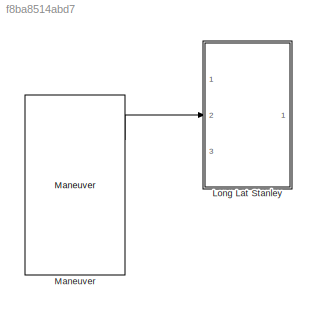
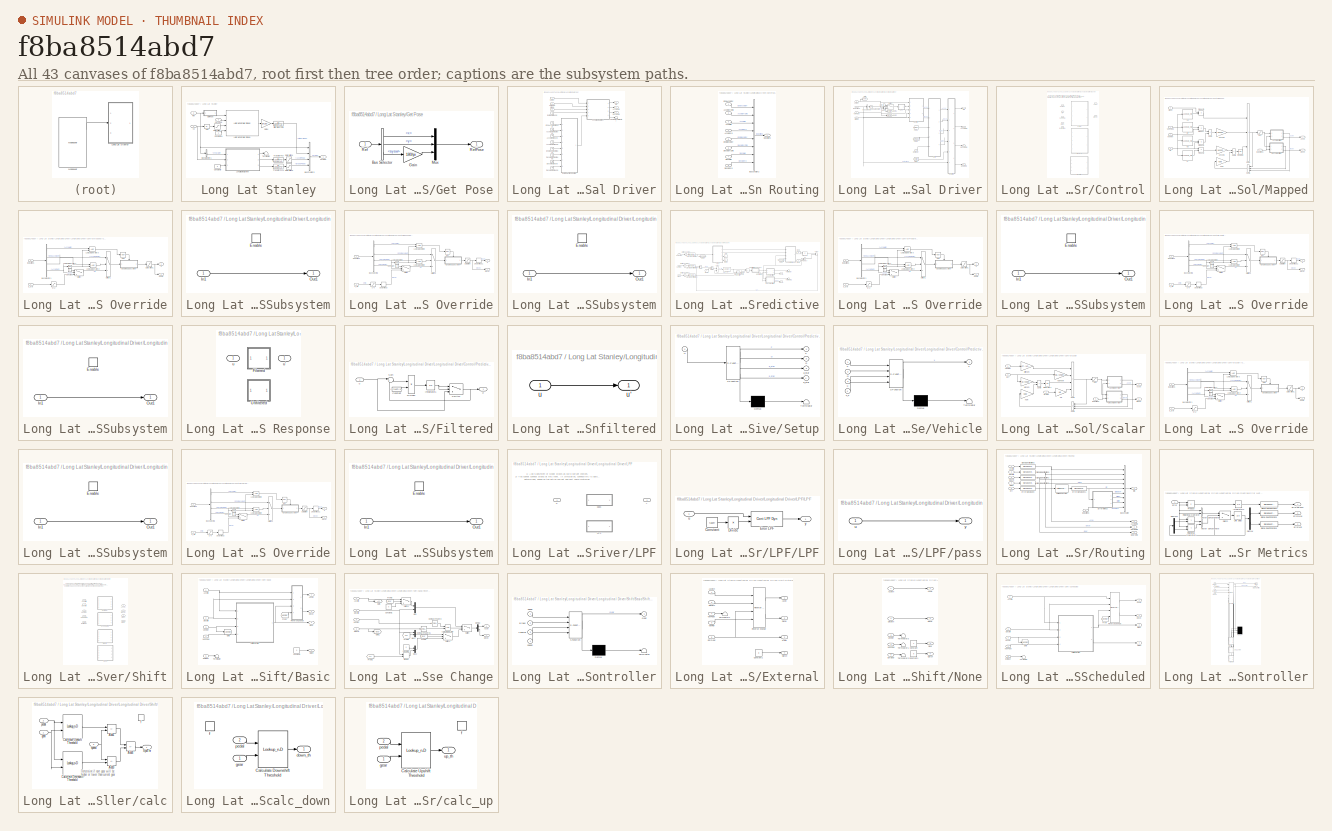
[diagram: thumbnail index - all 43 canvases of the model, root first then tree order]
MODEL slx_f8ba8514abd7
KIND library
CONFIG AbsTol = auto
CONFIG EnableMultiTasking = off
CONFIG FixedStep = auto
CONFIG MaxStep = auto
CONFIG MinStep = auto
CONFIG RelTol = 1e-3
CONFIG SampleTimeConstraint = Unconstrained
CONFIG SolverName = VariableStepAuto
CONFIG StartTime = 0.0
CONFIG StopTime = 10.0
BLOCK [SubSystem] Long Lat Stanley
  Ports = [3, 1]
  RequestExecContextInheritance = off
BLOCK [Abs] Long Lat Stanley/Abs
  SaturateOnIntegerOverflow = off
BLOCK [BusCreator] Long Lat Stanley/Bus Creator5
  DisplayOption = bar
  InheritFromInputs = on
  Inputs = 4
  Ports = [4, 1]
BLOCK [BusSelector] Long Lat Stanley/Bus Selector1
  OutputSignals = vTarget
  Ports = [1, 1]
BLOCK [Constant] Long Lat Stanley/Constant11
BLOCK [Constant] Long Lat Stanley/Constant9
  Value = 0
BLOCK [Inport] Long Lat Stanley/CurPose
  Port = 3
BLOCK [Outport] Long Lat Stanley/DrvBus
  VectorParamsAs1DForOutWhenUnconnected = off
BLOCK [TransferFcn] Long Lat Stanley/Filter Steer Cmd
  Denominator = [1/Driver.Lateral.fSteerCutoff.Value 1]
BLOCK [Gain] Long Lat Stanley/Gain4
  Gain = pi/180
BLOCK [SubSystem] Long Lat Stanley/Get Pose
  Ports = [1, 1]
  RequestExecContextInheritance = off
BLOCK [BusSelector] Long Lat Stanley/Get Pose/Bus Selector
  OutputSignals = x,y,ayaw
  Ports = [1, 3]
BLOCK [Gain] Long Lat Stanley/Get Pose/Gain
  Gain = 180/pi
BLOCK [Mux] Long Lat Stanley/Get Pose/Mux
  DisplayOption = bar
  Inputs = 3
  Ports = [3, 1]
BLOCK [Inport] Long Lat Stanley/Get Pose/Ref
BLOCK [Outport] Long Lat Stanley/Get Pose/RefPose
  VectorParamsAs1DForOutWhenUnconnected = off
BLOCK [Reference] Long Lat Stanley/Lateral Controller Stanley  REF=drivingvehiclecontroller/Lateral Controller Stanley
  Ports = [4, 1]
  SourceBlock = drivingvehiclecontroller/Lateral Controller Stanley
  SourceProductName = Automated Driving System Toolbox
  SourceType = Lateral Controller Stanley
BLOCK [SubSystem] Long Lat Stanley/Longitudinal Driver
  Ports = [3, 3]
  RequestExecContextInheritance = off
  SystemSampleTime = .01
BLOCK [Outport] Long Lat Stanley/Longitudinal Driver/AccelCmd
  Port = 2
  VectorParamsAs1DForOutWhenUnconnected = off
BLOCK [Ground] Long Lat Stanley/Longitudinal Driver/AccelHldGround
BLOCK [Ground] Long Lat Stanley/Longitudinal Driver/AccelOvrCmdGround
BLOCK [Ground] Long Lat Stanley/Longitudinal Driver/AccelZeroGround
BLOCK [Outport] Long Lat Stanley/Longitudinal Driver/DecelCmd
  Port = 3
  VectorParamsAs1DForOutWhenUnconnected = off
BLOCK [Ground] Long Lat Stanley/Longitudinal Driver/DecelHldGround
BLOCK [Ground] Long Lat Stanley/Longitudinal Driver/DecelOvrCmdGround
BLOCK [Ground] Long Lat Stanley/Longitudinal Driver/DecelZeroGround
BLOCK [Ground] Long Lat Stanley/Longitudinal Driver/EnblAccelOvrGround
BLOCK [Ground] Long Lat Stanley/Longitudinal Driver/EnblDecelOvrGround
BLOCK [Ground] Long Lat Stanley/Longitudinal Driver/ExtGearGround
BLOCK [SubSystem] Long Lat Stanley/Longitudinal Driver/External Action Routing
  Ports = [8, 1]
  RequestExecContextInheritance = off
BLOCK [Inport] Long Lat Stanley/Longitudinal Driver/External Action Routing/AccelHld
  OutDataTypeStr = boolean
  Port = 3
  Unit = 1
BLOCK [Inport] Long Lat Stanley/Longitudinal Driver/External Action Routing/AccelOvrCmd
  OutDataTypeStr = double
  Port = 2
  Unit = 1
BLOCK [Inport] Long Lat Stanley/Longitudinal Driver/External Action Routing/AccelZero
  OutDataTypeStr = boolean
  Port = 4
  Unit = 1
BLOCK [BusCreator] Long Lat Stanley/Longitudinal Driver/External Action Routing/Bus Creator2
  DisplayOption = bar
  InheritFromInputs = on
  Inputs = 8
  Ports = [8, 1]
BLOCK [Inport] Long Lat Stanley/Longitudinal Driver/External Action Routing/DecelHld
  OutDataTypeStr = boolean
  Port = 7
  Unit = 1
BLOCK [Inport] Long Lat Stanley/Longitudinal Driver/External Action Routing/DecelOvrCmd
  OutDataTypeStr = double
  Port = 6
  Unit = 1
BLOCK [Inport] Long Lat Stanley/Longitudinal Driver/External Action Routing/DecelZero
  OutDataTypeStr = boolean
  Port = 8
  Unit = 1
BLOCK [Inport] Long Lat Stanley/Longitudinal Driver/External Action Routing/EnblAccelOvr
  OutDataTypeStr = boolean
  Unit = 1
BLOCK [Inport] Long Lat Stanley/Longitudinal Driver/External Action Routing/EnblDecelOvr
  OutDataTypeStr = boolean
  Port = 5
  Unit = 1
BLOCK [Outport] Long Lat Stanley/Longitudinal Driver/External Action Routing/ExtActions
BLOCK [Terminator] Long Lat Stanley/Longitudinal Driver/GearCmdTerminator
BLOCK [Inport] Long Lat Stanley/Longitudinal Driver/Grade
  Port = 3
BLOCK [Outport] Long Lat Stanley/Longitudinal Driver/Info
  InitialOutput = 0
  VectorParamsAs1DForOutWhenUnconnected = off
BLOCK [SubSystem] Long Lat Stanley/Longitudinal Driver/Longitudinal Driver
  Ports = [5, 4]
  RequestExecContextInheritance = off
BLOCK [Outport] Long Lat Stanley/Longitudinal Driver/Longitudinal Driver/AccelCmd
  InitialOutput = 0
  Port = 2
  Unit = one
  VectorParamsAs1DForOutWhenUnconnected = off
BLOCK [BusSelector] Long Lat Stanley/Longitudinal Driver/Longitudinal Driver/Bus Selector
  OutputAsBus = on
  OutputSignals = EnblAccelOvr,AccelHld,AccelZero,EnblDecelOvr,DecelZero,DecelHld
  Ports = [1, 1]
BLOCK [SubSystem] Long Lat Stanley/Longitudinal Driver/Longitudinal Driver/Control
  LabelModeActiveChoice = 2
  Ports = [5, 2]
  RequestExecContextInheritance = off
  Variant = on
  VariantControlMode = label
BLOCK [Outport] Long Lat Stanley/Longitudinal Driver/Longitudinal Driver/Control/Accel
  VectorParamsAs1DForOutWhenUnconnected = off
BLOCK [Outport] Long Lat Stanley/Longitudinal Driver/Longitudinal Driver/Control/Decel
  Port = 2
  VectorParamsAs1DForOutWhenUnconnected = off
BLOCK [Inport] Long Lat Stanley/Longitudinal Driver/Longitudinal Driver/Control/ExtActions
  Port = 5
BLOCK [Inport] Long Lat Stanley/Longitudinal Driver/Longitudinal Driver/Control/Grade
  Port = 4
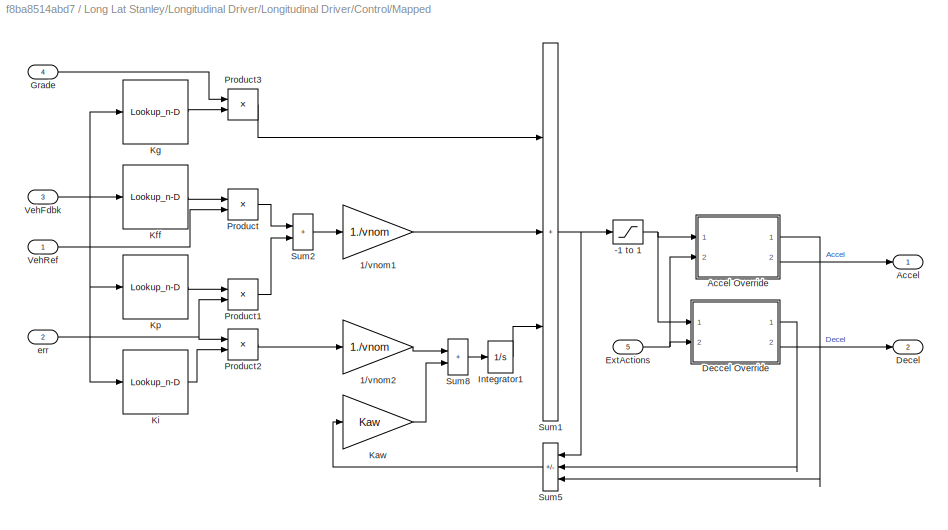
BLOCK [SubSystem] Long Lat Stanley/Longitudinal Driver/Longitudinal Driver/Control/Mapped
  Ports = [5, 2]
  RequestExecContextInheritance = off
  VariantControl = 1
BLOCK [Saturate] Long Lat Stanley/Longitudinal Driver/Longitudinal Driver/Control/Mapped/-1 to 1 
  LowerLimit = -1
  UpperLimit = 1
BLOCK [Gain] Long Lat Stanley/Longitudinal Driver/Longitudinal Driver/Control/Mapped/1//vnom1
  Gain = 1./vnom
  OutDataTypeStr = Inherit: Same as input
  ParamDataTypeStr = Inherit: Same as input
  SaturateOnIntegerOverflow = on
BLOCK [Gain] Long Lat Stanley/Longitudinal Driver/Longitudinal Driver/Control/Mapped/1//vnom2
  Gain = 1./vnom
  OutDataTypeStr = Inherit: Same as input
  ParamDataTypeStr = Inherit: Same as input
  SaturateOnIntegerOverflow = on
BLOCK [Outport] Long Lat Stanley/Longitudinal Driver/Longitudinal Driver/Control/Mapped/Accel
  InitialOutput = 0
  Unit = one
  VectorParamsAs1DForOutWhenUnconnected = off
BLOCK [SubSystem] Long Lat Stanley/Longitudinal Driver/Longitudinal Driver/Control/Mapped/Accel Override
  Ports = [2, 2]
  RequestExecContextInheritance = off
BLOCK [Saturate] Long Lat Stanley/Longitudinal Driver/Longitudinal Driver/Control/Mapped/Accel Override/0~1
  LowerLimit = 0
  UpperLimit = 1
  ZeroCross = off
BLOCK [Outport] Long Lat Stanley/Longitudinal Driver/Longitudinal Driver/Control/Mapped/Accel Override/Accel
  Port = 2
BLOCK [BusSelector] Long Lat Stanley/Longitudinal Driver/Longitudinal Driver/Control/Mapped/Accel Override/Bus Selector1
  OutputSignals = AccelHld,EnblAccelOvr,AccelOvrCmd,AccelZero
  Ports = [1, 4]
BLOCK [Constant] Long Lat Stanley/Longitudinal Driver/Longitudinal Driver/Control/Mapped/Accel Override/Constant
  Value = 0
BLOCK [SubSystem] Long Lat Stanley/Longitudinal Driver/Longitudinal Driver/Control/Mapped/Accel Override/Enabled Subsystem
  Ports = [1, 1, 1]
  RequestExecContextInheritance = off
  TreatAsAtomicUnit = on
BLOCK [EnablePort] Long Lat Stanley/Longitudinal Driver/Longitudinal Driver/Control/Mapped/Accel Override/Enabled Subsystem/Enable
  Ports = []
BLOCK [Inport] Long Lat Stanley/Longitudinal Driver/Longitudinal Driver/Control/Mapped/Accel Override/Enabled Subsystem/In1
BLOCK [Outport] Long Lat Stanley/Longitudinal Driver/Longitudinal Driver/Control/Mapped/Accel Override/Enabled Subsystem/Out1
BLOCK [Inport] Long Lat Stanley/Longitudinal Driver/Longitudinal Driver/Control/Mapped/Accel Override/ExtActions
  Port = 2
BLOCK [Logic] Long Lat Stanley/Longitudinal Driver/Longitudinal Driver/Control/Mapped/Accel Override/Logical Operator1
  AllPortsSameDT = off
  Operator = NOT
  OutDataTypeStr = boolean
  Ports = [1, 1]
BLOCK [Logic] Long Lat Stanley/Longitudinal Driver/Longitudinal Driver/Control/Mapped/Accel Override/Logical Operator2
  AllPortsSameDT = off
  OutDataTypeStr = boolean
  Ports = [2, 1]
BLOCK [Logic] Long Lat Stanley/Longitudinal Driver/Longitudinal Driver/Control/Mapped/Accel Override/Logical Operator3
  AllPortsSameDT = off
  OutDataTypeStr = boolean
  Ports = [2, 1]
BLOCK [Logic] Long Lat Stanley/Longitudinal Driver/Longitudinal Driver/Control/Mapped/Accel Override/NOT
  AllPortsSameDT = off
  IconShape = distinctive
  Operator = NOT
  OutDataTypeStr = boolean
  Ports = [1, 1]
BLOCK [Saturate] Long Lat Stanley/Longitudinal Driver/Longitudinal Driver/Control/Mapped/Accel Override/Saturation1
  LowerLimit = 0
  UpperLimit = 1
  ZeroCross = off
BLOCK [Switch] Long Lat Stanley/Longitudinal Driver/Longitudinal Driver/Control/Mapped/Accel Override/Switch
  Criteria = u2 > Threshold
  InputSameDT = off
  SaturateOnIntegerOverflow = off
BLOCK [Switch] Long Lat Stanley/Longitudinal Driver/Longitudinal Driver/Control/Mapped/Accel Override/Switch1
  Criteria = u2 > Threshold
  InputSameDT = off
  SaturateOnIntegerOverflow = off
BLOCK [Outport] Long Lat Stanley/Longitudinal Driver/Longitudinal Driver/Control/Mapped/Accel Override/u
BLOCK [Inport] Long Lat Stanley/Longitudinal Driver/Longitudinal Driver/Control/Mapped/Accel Override/u_o(t)
BLOCK [SubSystem] Long Lat Stanley/Longitudinal Driver/Longitudinal Driver/Control/Mapped/Deccel Override
  Ports = [2, 2]
  RequestExecContextInheritance = off
BLOCK [Saturate] Long Lat Stanley/Longitudinal Driver/Longitudinal Driver/Control/Mapped/Deccel Override/-1~0
  LowerLimit = -1
  UpperLimit = 0
  ZeroCross = off
BLOCK [BusSelector] Long Lat Stanley/Longitudinal Driver/Longitudinal Driver/Control/Mapped/Deccel Override/Bus Selector1
  OutputSignals = DecelHld,EnblDecelOvr,DecelOvrCmd,DecelZero
  Ports = [1, 4]
BLOCK [Constant] Long Lat Stanley/Longitudinal Driver/Longitudinal Driver/Control/Mapped/Deccel Override/Constant
  Value = 0
BLOCK [Outport] Long Lat Stanley/Longitudinal Driver/Longitudinal Driver/Control/Mapped/Deccel Override/Decel
  Port = 2
BLOCK [SubSystem] Long Lat Stanley/Longitudinal Driver/Longitudinal Driver/Control/Mapped/Deccel Override/Enabled Subsystem
  Ports = [1, 1, 1]
  RequestExecContextInheritance = off
  TreatAsAtomicUnit = on
BLOCK [EnablePort] Long Lat Stanley/Longitudinal Driver/Longitudinal Driver/Control/Mapped/Deccel Override/Enabled Subsystem/Enable
  Ports = []
BLOCK [Inport] Long Lat Stanley/Longitudinal Driver/Longitudinal Driver/Control/Mapped/Deccel Override/Enabled Subsystem/In1
BLOCK [Outport] Long Lat Stanley/Longitudinal Driver/Longitudinal Driver/Control/Mapped/Deccel Override/Enabled Subsystem/Out1
BLOCK [Inport] Long Lat Stanley/Longitudinal Driver/Longitudinal Driver/Control/Mapped/Deccel Override/ExtActions
  Port = 2
BLOCK [Logic] Long Lat Stanley/Longitudinal Driver/Longitudinal Driver/Control/Mapped/Deccel Override/Logical Operator1
  AllPortsSameDT = off
  Operator = NOT
  OutDataTypeStr = boolean
  Ports = [1, 1]
BLOCK [Logic] Long Lat Stanley/Longitudinal Driver/Longitudinal Driver/Control/Mapped/Deccel Override/Logical Operator2
  AllPortsSameDT = off
  OutDataTypeStr = boolean
  Ports = [2, 1]
BLOCK [Logic] Long Lat Stanley/Longitudinal Driver/Longitudinal Driver/Control/Mapped/Deccel Override/Logical Operator3
  AllPortsSameDT = off
  OutDataTypeStr = boolean
  Ports = [2, 1]
BLOCK [Logic] Long Lat Stanley/Longitudinal Driver/Longitudinal Driver/Control/Mapped/Deccel Override/NOT
  AllPortsSameDT = off
  IconShape = distinctive
  Operator = NOT
  OutDataTypeStr = boolean
  Ports = [1, 1]
BLOCK [Saturate] Long Lat Stanley/Longitudinal Driver/Longitudinal Driver/Control/Mapped/Deccel Override/Saturation
  LowerLimit = 0
  UpperLimit = 1
  ZeroCross = off
BLOCK [Switch] Long Lat Stanley/Longitudinal Driver/Longitudinal Driver/Control/Mapped/Deccel Override/Switch
  Criteria = u2 > Threshold
  InputSameDT = off
  SaturateOnIntegerOverflow = off
BLOCK [Switch] Long Lat Stanley/Longitudinal Driver/Longitudinal Driver/Control/Mapped/Deccel Override/Switch1
  Criteria = u2 > Threshold
  InputSameDT = off
  SaturateOnIntegerOverflow = off
BLOCK [UnaryMinus] Long Lat Stanley/Longitudinal Driver/Longitudinal Driver/Control/Mapped/Deccel Override/Unary Minus
BLOCK [UnaryMinus] Long Lat Stanley/Longitudinal Driver/Longitudinal Driver/Control/Mapped/Deccel Override/Unary Minus1
BLOCK [Outport] Long Lat Stanley/Longitudinal Driver/Longitudinal Driver/Control/Mapped/Deccel Override/u
BLOCK [Inport] Long Lat Stanley/Longitudinal Driver/Longitudinal Driver/Control/Mapped/Deccel Override/u_o(t)
BLOCK [Outport] Long Lat Stanley/Longitudinal Driver/Longitudinal Driver/Control/Mapped/Decel
  InitialOutput = 0
  Port = 2
  Unit = one
  VectorParamsAs1DForOutWhenUnconnected = off
BLOCK [Inport] Long Lat Stanley/Longitudinal Driver/Longitudinal Driver/Control/Mapped/ExtActions
  Port = 5
BLOCK [Inport] Long Lat Stanley/Longitudinal Driver/Longitudinal Driver/Control/Mapped/Grade
  Port = 4
  Unit = deg
BLOCK [Integrator] Long Lat Stanley/Longitudinal Driver/Longitudinal Driver/Control/Mapped/Integrator1
  LimitOutput = on
  LowerSaturationLimit = -1
  Ports = [1, 1]
  UpperSaturationLimit = 1
BLOCK [Gain] Long Lat Stanley/Longitudinal Driver/Longitudinal Driver/Control/Mapped/Kaw
  Gain = Kaw
  OutDataTypeStr = Inherit: Same as input
  ParamDataTypeStr = Inherit: Same as input
  SaturateOnIntegerOverflow = on
BLOCK [Lookup_n-D] Long Lat Stanley/Longitudinal Driver/Longitudinal Driver/Control/Mapped/Kff
  BreakpointsForDimension1 = VehVelVec
  InputPortMap = u0
  InternalRulePriority = Speed
  NumberOfTableDimensions = 1
  Ports = [1, 1]
  RndMeth = Simplest
  Table = KffVec
BLOCK [Lookup_n-D] Long Lat Stanley/Longitudinal Driver/Longitudinal Driver/Control/Mapped/Kg
  BreakpointsForDimension1 = VehVelVec
  InputPortMap = u0
  InternalRulePriority = Speed
  NumberOfTableDimensions = 1
  Ports = [1, 1]
  RndMeth = Simplest
  Table = KgVec
BLOCK [Lookup_n-D] Long Lat Stanley/Longitudinal Driver/Longitudinal Driver/Control/Mapped/Ki
  BreakpointsForDimension1 = VehVelVec
  InputPortMap = u0
  InternalRulePriority = Speed
  NumberOfTableDimensions = 1
  Ports = [1, 1]
  RndMeth = Simplest
  Table = KiVec
BLOCK [Lookup_n-D] Long Lat Stanley/Longitudinal Driver/Longitudinal Driver/Control/Mapped/Kp
  BreakpointsForDimension1 = VehVelVec
  InputPortMap = u0
  InternalRulePriority = Speed
  NumberOfTableDimensions = 1
  Ports = [1, 1]
  RndMeth = Simplest
  Table = KpVec
BLOCK [Product] Long Lat Stanley/Longitudinal Driver/Longitudinal Driver/Control/Mapped/Product
  Ports = [2, 1]
BLOCK [Product] Long Lat Stanley/Longitudinal Driver/Longitudinal Driver/Control/Mapped/Product1
  Ports = [2, 1]
BLOCK [Product] Long Lat Stanley/Longitudinal Driver/Longitudinal Driver/Control/Mapped/Product2
  Ports = [2, 1]
BLOCK [Product] Long Lat Stanley/Longitudinal Driver/Longitudinal Driver/Control/Mapped/Product3
  Ports = [2, 1]
BLOCK [Sum] Long Lat Stanley/Longitudinal Driver/Longitudinal Driver/Control/Mapped/Sum1
  IconShape = rectangular
  InputSameDT = on
  Inputs = +++
  OutDataTypeStr = Inherit: Same as first input
  Ports = [3, 1]
  SaturateOnIntegerOverflow = on
BLOCK [Sum] Long Lat Stanley/Longitudinal Driver/Longitudinal Driver/Control/Mapped/Sum2
  IconShape = rectangular
  InputSameDT = on
  OutDataTypeStr = Inherit: Same as first input
  Ports = [2, 1]
  SaturateOnIntegerOverflow = on
BLOCK [Sum] Long Lat Stanley/Longitudinal Driver/Longitudinal Driver/Control/Mapped/Sum5
  IconShape = rectangular
  InputSameDT = on
  Inputs = --+
  OutDataTypeStr = Inherit: Same as first input
  Ports = [3, 1]
  SaturateOnIntegerOverflow = on
BLOCK [Sum] Long Lat Stanley/Longitudinal Driver/Longitudinal Driver/Control/Mapped/Sum8
  IconShape = rectangular
  InputSameDT = on
  OutDataTypeStr = Inherit: Same as first input
  Ports = [2, 1]
  SaturateOnIntegerOverflow = on
BLOCK [Inport] Long Lat Stanley/Longitudinal Driver/Longitudinal Driver/Control/Mapped/VehFdbk
  Port = 3
BLOCK [Inport] Long Lat Stanley/Longitudinal Driver/Longitudinal Driver/Control/Mapped/VehRef
BLOCK [Inport] Long Lat Stanley/Longitudinal Driver/Longitudinal Driver/Control/Mapped/err
  Port = 2
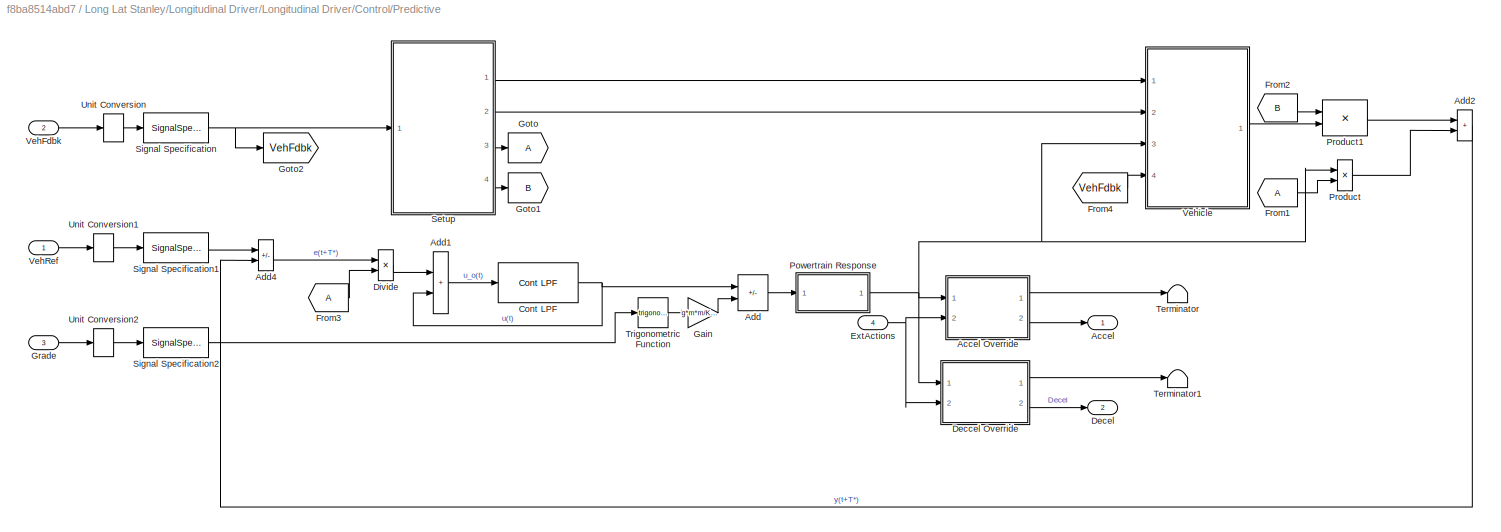
BLOCK [SubSystem] Long Lat Stanley/Longitudinal Driver/Longitudinal Driver/Control/Predictive
  Ports = [4, 2]
  RequestExecContextInheritance = off
  VariantControl = 2
BLOCK [Outport] Long Lat Stanley/Longitudinal Driver/Longitudinal Driver/Control/Predictive/Accel
  VectorParamsAs1DForOutWhenUnconnected = off
BLOCK [SubSystem] Long Lat Stanley/Longitudinal Driver/Longitudinal Driver/Control/Predictive/Accel Override
  Ports = [2, 2]
  RequestExecContextInheritance = off
BLOCK [Saturate] Long Lat Stanley/Longitudinal Driver/Longitudinal Driver/Control/Predictive/Accel Override/0~1
  LowerLimit = 0
  UpperLimit = 1
  ZeroCross = off
BLOCK [Outport] Long Lat Stanley/Longitudinal Driver/Longitudinal Driver/Control/Predictive/Accel Override/Accel
  Port = 2
BLOCK [BusSelector] Long Lat Stanley/Longitudinal Driver/Longitudinal Driver/Control/Predictive/Accel Override/Bus Selector1
  OutputSignals = AccelHld,EnblAccelOvr,AccelOvrCmd,AccelZero
  Ports = [1, 4]
BLOCK [Constant] Long Lat Stanley/Longitudinal Driver/Longitudinal Driver/Control/Predictive/Accel Override/Constant
  Value = 0
BLOCK [SubSystem] Long Lat Stanley/Longitudinal Driver/Longitudinal Driver/Control/Predictive/Accel Override/Enabled Subsystem
  Ports = [1, 1, 1]
  RequestExecContextInheritance = off
  TreatAsAtomicUnit = on
BLOCK [EnablePort] Long Lat Stanley/Longitudinal Driver/Longitudinal Driver/Control/Predictive/Accel Override/Enabled Subsystem/Enable
  Ports = []
BLOCK [Inport] Long Lat Stanley/Longitudinal Driver/Longitudinal Driver/Control/Predictive/Accel Override/Enabled Subsystem/In1
BLOCK [Outport] Long Lat Stanley/Longitudinal Driver/Longitudinal Driver/Control/Predictive/Accel Override/Enabled Subsystem/Out1
BLOCK [Inport] Long Lat Stanley/Longitudinal Driver/Longitudinal Driver/Control/Predictive/Accel Override/ExtActions
  Port = 2
BLOCK [Logic] Long Lat Stanley/Longitudinal Driver/Longitudinal Driver/Control/Predictive/Accel Override/Logical Operator1
  AllPortsSameDT = off
  Operator = NOT
  OutDataTypeStr = boolean
  Ports = [1, 1]
BLOCK [Logic] Long Lat Stanley/Longitudinal Driver/Longitudinal Driver/Control/Predictive/Accel Override/Logical Operator2
  AllPortsSameDT = off
  OutDataTypeStr = boolean
  Ports = [2, 1]
BLOCK [Logic] Long Lat Stanley/Longitudinal Driver/Longitudinal Driver/Control/Predictive/Accel Override/Logical Operator3
  AllPortsSameDT = off
  OutDataTypeStr = boolean
  Ports = [2, 1]
BLOCK [Logic] Long Lat Stanley/Longitudinal Driver/Longitudinal Driver/Control/Predictive/Accel Override/NOT
  AllPortsSameDT = off
  IconShape = distinctive
  Operator = NOT
  OutDataTypeStr = boolean
  Ports = [1, 1]
BLOCK [Saturate] Long Lat Stanley/Longitudinal Driver/Longitudinal Driver/Control/Predictive/Accel Override/Saturation1
  LowerLimit = 0
  UpperLimit = 1
  ZeroCross = off
BLOCK [Switch] Long Lat Stanley/Longitudinal Driver/Longitudinal Driver/Control/Predictive/Accel Override/Switch
  Criteria = u2 > Threshold
  InputSameDT = off
  SaturateOnIntegerOverflow = off
BLOCK [Switch] Long Lat Stanley/Longitudinal Driver/Longitudinal Driver/Control/Predictive/Accel Override/Switch1
  Criteria = u2 > Threshold
  InputSameDT = off
  SaturateOnIntegerOverflow = off
BLOCK [Outport] Long Lat Stanley/Longitudinal Driver/Longitudinal Driver/Control/Predictive/Accel Override/u
BLOCK [Inport] Long Lat Stanley/Longitudinal Driver/Longitudinal Driver/Control/Predictive/Accel Override/u_o(t)
BLOCK [Sum] Long Lat Stanley/Longitudinal Driver/Longitudinal Driver/Control/Predictive/Add
  IconShape = rectangular
  Inputs = +-
  Ports = [2, 1]
BLOCK [Sum] Long Lat Stanley/Longitudinal Driver/Longitudinal Driver/Control/Predictive/Add1
  IconShape = rectangular
  Ports = [2, 1]
BLOCK [Sum] Long Lat Stanley/Longitudinal Driver/Longitudinal Driver/Control/Predictive/Add2
  IconShape = rectangular
  Ports = [2, 1]
BLOCK [Sum] Long Lat Stanley/Longitudinal Driver/Longitudinal Driver/Control/Predictive/Add4
  IconShape = rectangular
  Inputs = +-
  Ports = [2, 1]
BLOCK [Reference] Long Lat Stanley/Longitudinal Driver/Longitudinal Driver/Control/Predictive/Cont LPF  REF=autolibutils/Cont LPF
  Ports = [1, 1]
  SourceBlock = autolibutils/Cont LPF
  SourceProductBaseCode = PW,DR,MT,VE
BLOCK [SubSystem] Long Lat Stanley/Longitudinal Driver/Longitudinal Driver/Control/Predictive/Deccel Override
  Ports = [2, 2]
  RequestExecContextInheritance = off
BLOCK [Saturate] Long Lat Stanley/Longitudinal Driver/Longitudinal Driver/Control/Predictive/Deccel Override/-1~0
  LowerLimit = -1
  UpperLimit = 0
  ZeroCross = off
BLOCK [BusSelector] Long Lat Stanley/Longitudinal Driver/Longitudinal Driver/Control/Predictive/Deccel Override/Bus Selector1
  OutputSignals = DecelHld,EnblDecelOvr,DecelOvrCmd,DecelZero
  Ports = [1, 4]
BLOCK [Constant] Long Lat Stanley/Longitudinal Driver/Longitudinal Driver/Control/Predictive/Deccel Override/Constant
  Value = 0
BLOCK [Outport] Long Lat Stanley/Longitudinal Driver/Longitudinal Driver/Control/Predictive/Deccel Override/Decel
  Port = 2
BLOCK [SubSystem] Long Lat Stanley/Longitudinal Driver/Longitudinal Driver/Control/Predictive/Deccel Override/Enabled Subsystem
  Ports = [1, 1, 1]
  RequestExecContextInheritance = off
  TreatAsAtomicUnit = on
BLOCK [EnablePort] Long Lat Stanley/Longitudinal Driver/Longitudinal Driver/Control/Predictive/Deccel Override/Enabled Subsystem/Enable
  Ports = []
BLOCK [Inport] Long Lat Stanley/Longitudinal Driver/Longitudinal Driver/Control/Predictive/Deccel Override/Enabled Subsystem/In1
BLOCK [Outport] Long Lat Stanley/Longitudinal Driver/Longitudinal Driver/Control/Predictive/Deccel Override/Enabled Subsystem/Out1
BLOCK [Inport] Long Lat Stanley/Longitudinal Driver/Longitudinal Driver/Control/Predictive/Deccel Override/ExtActions
  Port = 2
BLOCK [Logic] Long Lat Stanley/Longitudinal Driver/Longitudinal Driver/Control/Predictive/Deccel Override/Logical Operator1
  AllPortsSameDT = off
  Operator = NOT
  OutDataTypeStr = boolean
  Ports = [1, 1]
BLOCK [Logic] Long Lat Stanley/Longitudinal Driver/Longitudinal Driver/Control/Predictive/Deccel Override/Logical Operator2
  AllPortsSameDT = off
  OutDataTypeStr = boolean
  Ports = [2, 1]
BLOCK [Logic] Long Lat Stanley/Longitudinal Driver/Longitudinal Driver/Control/Predictive/Deccel Override/Logical Operator3
  AllPortsSameDT = off
  OutDataTypeStr = boolean
  Ports = [2, 1]
BLOCK [Logic] Long Lat Stanley/Longitudinal Driver/Longitudinal Driver/Control/Predictive/Deccel Override/NOT
  AllPortsSameDT = off
  IconShape = distinctive
  Operator = NOT
  OutDataTypeStr = boolean
  Ports = [1, 1]
BLOCK [Saturate] Long Lat Stanley/Longitudinal Driver/Longitudinal Driver/Control/Predictive/Deccel Override/Saturation
  LowerLimit = 0
  UpperLimit = 1
  ZeroCross = off
BLOCK [Switch] Long Lat Stanley/Longitudinal Driver/Longitudinal Driver/Control/Predictive/Deccel Override/Switch
  Criteria = u2 > Threshold
  InputSameDT = off
  SaturateOnIntegerOverflow = off
BLOCK [Switch] Long Lat Stanley/Longitudinal Driver/Longitudinal Driver/Control/Predictive/Deccel Override/Switch1
  Criteria = u2 > Threshold
  InputSameDT = off
  SaturateOnIntegerOverflow = off
BLOCK [UnaryMinus] Long Lat Stanley/Longitudinal Driver/Longitudinal Driver/Control/Predictive/Deccel Override/Unary Minus
BLOCK [UnaryMinus] Long Lat Stanley/Longitudinal Driver/Longitudinal Driver/Control/Predictive/Deccel Override/Unary Minus1
BLOCK [Outport] Long Lat Stanley/Longitudinal Driver/Longitudinal Driver/Control/Predictive/Deccel Override/u
BLOCK [Inport] Long Lat Stanley/Longitudinal Driver/Longitudinal Driver/Control/Predictive/Deccel Override/u_o(t)
BLOCK [Outport] Long Lat Stanley/Longitudinal Driver/Longitudinal Driver/Control/Predictive/Decel
  Port = 2
  VectorParamsAs1DForOutWhenUnconnected = off
BLOCK [Product] Long Lat Stanley/Longitudinal Driver/Longitudinal Driver/Control/Predictive/Divide
  Inputs = */
  Ports = [2, 1]
BLOCK [Inport] Long Lat Stanley/Longitudinal Driver/Longitudinal Driver/Control/Predictive/ExtActions
  Port = 4
BLOCK [From] Long Lat Stanley/Longitudinal Driver/Longitudinal Driver/Control/Predictive/From1
BLOCK [From] Long Lat Stanley/Longitudinal Driver/Longitudinal Driver/Control/Predictive/From2
  GotoTag = B
BLOCK [From] Long Lat Stanley/Longitudinal Driver/Longitudinal Driver/Control/Predictive/From3
BLOCK [From] Long Lat Stanley/Longitudinal Driver/Longitudinal Driver/Control/Predictive/From4
  GotoTag = VehFdbk
BLOCK [Gain] Long Lat Stanley/Longitudinal Driver/Longitudinal Driver/Control/Predictive/Gain
  Gain = g*m*m/Kpt
BLOCK [Goto] Long Lat Stanley/Longitudinal Driver/Longitudinal Driver/Control/Predictive/Goto
BLOCK [Goto] Long Lat Stanley/Longitudinal Driver/Longitudinal Driver/Control/Predictive/Goto1
  GotoTag = B
BLOCK [Goto] Long Lat Stanley/Longitudinal Driver/Longitudinal Driver/Control/Predictive/Goto2
  GotoTag = VehFdbk
BLOCK [Inport] Long Lat Stanley/Longitudinal Driver/Longitudinal Driver/Control/Predictive/Grade
  Port = 3
BLOCK [SubSystem] Long Lat Stanley/Longitudinal Driver/Longitudinal Driver/Control/Predictive/Powertrain Response
  LabelModeActiveChoice = 0
  Ports = [1, 1]
  RequestExecContextInheritance = off
  Variant = on
  VariantControl = Variant1
  VariantControlMode = label
BLOCK [Outport] Long Lat Stanley/Longitudinal Driver/Longitudinal Driver/Control/Predictive/Powertrain Response/ u'
  VectorParamsAs1DForOutWhenUnconnected = off
BLOCK [SubSystem] Long Lat Stanley/Longitudinal Driver/Longitudinal Driver/Control/Predictive/Powertrain Response/Filtered
  Ports = [1, 1]
  RequestExecContextInheritance = off
  VariantControl = 1
BLOCK [Constant] Long Lat Stanley/Longitudinal Driver/Longitudinal Driver/Control/Predictive/Powertrain Response/Filtered/Constant
  Value = (1/tauPt)*pi*2
BLOCK [Product] Long Lat Stanley/Longitudinal Driver/Longitudinal Driver/Control/Predictive/Powertrain Response/Filtered/Divide1
  Inputs = **
  Ports = [2, 1]
BLOCK [Integrator] Long Lat Stanley/Longitudinal Driver/Longitudinal Driver/Control/Predictive/Powertrain Response/Filtered/Integrator1
  Ports = [1, 1]
BLOCK [Sum] Long Lat Stanley/Longitudinal Driver/Longitudinal Driver/Control/Predictive/Powertrain Response/Filtered/Sum
  Inputs = |+-
  Ports = [2, 1]
BLOCK [Switch] Long Lat Stanley/Longitudinal Driver/Longitudinal Driver/Control/Predictive/Powertrain Response/Filtered/Switch
  Criteria = u2 > Threshold
  InputSameDT = off
  SaturateOnIntegerOverflow = off
  ZeroCross = off
BLOCK [Inport] Long Lat Stanley/Longitudinal Driver/Longitudinal Driver/Control/Predictive/Powertrain Response/Filtered/u
BLOCK [Outport] Long Lat Stanley/Longitudinal Driver/Longitudinal Driver/Control/Predictive/Powertrain Response/Filtered/u'
  VectorParamsAs1DForOutWhenUnconnected = off
BLOCK [SubSystem] Long Lat Stanley/Longitudinal Driver/Longitudinal Driver/Control/Predictive/Powertrain Response/Unfiltered
  Ports = [1, 1]
  RequestExecContextInheritance = off
  VariantControl = 0
BLOCK [Inport] Long Lat Stanley/Longitudinal Driver/Longitudinal Driver/Control/Predictive/Powertrain Response/Unfiltered/u
BLOCK [Outport] Long Lat Stanley/Longitudinal Driver/Longitudinal Driver/Control/Predictive/Powertrain Response/Unfiltered/u'
  VectorParamsAs1DForOutWhenUnconnected = off
BLOCK [Inport] Long Lat Stanley/Longitudinal Driver/Longitudinal Driver/Control/Predictive/Powertrain Response/u 
BLOCK [Product] Long Lat Stanley/Longitudinal Driver/Longitudinal Driver/Control/Predictive/Product
  Ports = [2, 1]
BLOCK [Product] Long Lat Stanley/Longitudinal Driver/Longitudinal Driver/Control/Predictive/Product1
  Multiplication = Matrix(*)
  Ports = [2, 1]
BLOCK [SubSystem] Long Lat Stanley/Longitudinal Driver/Longitudinal Driver/Control/Predictive/Setup
  ErrorFcn = Stateflow.Translate.translate
  PermitHierarchicalResolution = ExplicitOnly
  Ports = [1, 4]
  RequestExecContextInheritance = off
  SFBlockType = MATLAB Function
  TreatAsAtomicUnit = on
BLOCK [Demux] Long Lat Stanley/Longitudinal Driver/Longitudinal Driver/Control/Predictive/Setup/ Demux 
  Outputs = 1
  Ports = [1, 1]
BLOCK [S-Function] Long Lat Stanley/Longitudinal Driver/Longitudinal Driver/Control/Predictive/Setup/ SFunction 
  EnableBusSupport = off
  FunctionName = sf_sfun
  Parameters = Kpt,Lvv,aR,bR,cR,m,tau
  PortCounts = [1 5]
  Ports = [1, 5]
  SFcnIsStateOwnerBlock = off
  SFunctionDeploymentMode = off
  Tag = Stateflow S-Function 1
BLOCK [Terminator] Long Lat Stanley/Longitudinal Driver/Longitudinal Driver/Control/Predictive/Setup/ Terminator 
BLOCK [Outport] Long Lat Stanley/Longitudinal Driver/Longitudinal Driver/Control/Predictive/Setup/F
  VectorParamsAs1DForOutWhenUnconnected = off
BLOCK [Outport] Long Lat Stanley/Longitudinal Driver/Longitudinal Driver/Control/Predictive/Setup/G
  Port = 2
  VectorParamsAs1DForOutWhenUnconnected = off
BLOCK [Inport] Long Lat Stanley/Longitudinal Driver/Longitudinal Driver/Control/Predictive/Setup/U
BLOCK [Outport] Long Lat Stanley/Longitudinal Driver/Longitudinal Driver/Control/Predictive/Setup/a_star
  Port = 3
  VectorParamsAs1DForOutWhenUnconnected = off
BLOCK [Outport] Long Lat Stanley/Longitudinal Driver/Longitudinal Driver/Control/Predictive/Setup/b_star
  Port = 4
  VectorParamsAs1DForOutWhenUnconnected = off
BLOCK [SignalSpecification] Long Lat Stanley/Longitudinal Driver/Longitudinal Driver/Control/Predictive/Signal Specification
  Unit = m/s
BLOCK [SignalSpecification] Long Lat Stanley/Longitudinal Driver/Longitudinal Driver/Control/Predictive/Signal Specification1
  Unit = m/s
BLOCK [SignalSpecification] Long Lat Stanley/Longitudinal Driver/Longitudinal Driver/Control/Predictive/Signal Specification2
  Unit = rad
BLOCK [Terminator] Long Lat Stanley/Longitudinal Driver/Longitudinal Driver/Control/Predictive/Terminator
BLOCK [Terminator] Long Lat Stanley/Longitudinal Driver/Longitudinal Driver/Control/Predictive/Terminator1
BLOCK [Trigonometry] Long Lat Stanley/Longitudinal Driver/Longitudinal Driver/Control/Predictive/Trigonometric Function
  Ports = [1, 1]
BLOCK [UnitConversion] Long Lat Stanley/Longitudinal Driver/Longitudinal Driver/Control/Predictive/Unit Conversion
BLOCK [UnitConversion] Long Lat Stanley/Longitudinal Driver/Longitudinal Driver/Control/Predictive/Unit Conversion1
BLOCK [UnitConversion] Long Lat Stanley/Longitudinal Driver/Longitudinal Driver/Control/Predictive/Unit Conversion2
BLOCK [Inport] Long Lat Stanley/Longitudinal Driver/Longitudinal Driver/Control/Predictive/VehFdbk
  Port = 2
BLOCK [Inport] Long Lat Stanley/Longitudinal Driver/Longitudinal Driver/Control/Predictive/VehRef
BLOCK [SubSystem] Long Lat Stanley/Longitudinal Driver/Longitudinal Driver/Control/Predictive/Vehicle
  ErrorFcn = Stateflow.Translate.translate
  PermitHierarchicalResolution = ExplicitOnly
  Ports = [4, 1]
  RequestExecContextInheritance = off
  SFBlockType = MATLAB Function
  TreatAsAtomicUnit = on
BLOCK [Demux] Long Lat Stanley/Longitudinal Driver/Longitudinal Driver/Control/Predictive/Vehicle/ Demux 
  Outputs = 1
  Ports = [1, 1]
BLOCK [S-Function] Long Lat Stanley/Longitudinal Driver/Longitudinal Driver/Control/Predictive/Vehicle/ SFunction 
  EnableBusSupport = off
  FunctionName = sf_sfun
  PortCounts = [4 2]
  Ports = [4, 2]
  SFcnIsStateOwnerBlock = off
  SFunctionDeploymentMode = off
  Tag = Stateflow S-Function 2
BLOCK [Terminator] Long Lat Stanley/Longitudinal Driver/Longitudinal Driver/Control/Predictive/Vehicle/ Terminator 
BLOCK [Inport] Long Lat Stanley/Longitudinal Driver/Longitudinal Driver/Control/Predictive/Vehicle/F
BLOCK [Inport] Long Lat Stanley/Longitudinal Driver/Longitudinal Driver/Control/Predictive/Vehicle/G
  Port = 2
BLOCK [Inport] Long Lat Stanley/Longitudinal Driver/Longitudinal Driver/Control/Predictive/Vehicle/u
  Port = 3
BLOCK [Outport] Long Lat Stanley/Longitudinal Driver/Longitudinal Driver/Control/Predictive/Vehicle/x
  VectorParamsAs1DForOutWhenUnconnected = off
BLOCK [Inport] Long Lat Stanley/Longitudinal Driver/Longitudinal Driver/Control/Predictive/Vehicle/x_o
  Port = 4
BLOCK [SubSystem] Long Lat Stanley/Longitudinal Driver/Longitudinal Driver/Control/Scalar
  Ports = [4, 2]
  RequestExecContextInheritance = off
  VariantControl = 0
BLOCK [Saturate] Long Lat Stanley/Longitudinal Driver/Longitudinal Driver/Control/Scalar/-1 to 1 
  LowerLimit = -1
  UpperLimit = 1
BLOCK [Outport] Long Lat Stanley/Longitudinal Driver/Longitudinal Driver/Control/Scalar/Accel
  InitialOutput = 0
  Unit = one
  VectorParamsAs1DForOutWhenUnconnected = off
BLOCK [SubSystem] Long Lat Stanley/Longitudinal Driver/Longitudinal Driver/Control/Scalar/Accel Override
  Ports = [2, 2]
  RequestExecContextInheritance = off
BLOCK [Saturate] Long Lat Stanley/Longitudinal Driver/Longitudinal Driver/Control/Scalar/Accel Override/0~1
  LowerLimit = 0
  UpperLimit = 1
  ZeroCross = off
BLOCK [Outport] Long Lat Stanley/Longitudinal Driver/Longitudinal Driver/Control/Scalar/Accel Override/Accel
  Port = 2
BLOCK [BusSelector] Long Lat Stanley/Longitudinal Driver/Longitudinal Driver/Control/Scalar/Accel Override/Bus Selector1
  OutputSignals = AccelHld,EnblAccelOvr,AccelOvrCmd,AccelZero
  Ports = [1, 4]
BLOCK [Constant] Long Lat Stanley/Longitudinal Driver/Longitudinal Driver/Control/Scalar/Accel Override/Constant
  Value = 0
BLOCK [SubSystem] Long Lat Stanley/Longitudinal Driver/Longitudinal Driver/Control/Scalar/Accel Override/Enabled Subsystem
  Ports = [1, 1, 1]
  RequestExecContextInheritance = off
  TreatAsAtomicUnit = on
BLOCK [EnablePort] Long Lat Stanley/Longitudinal Driver/Longitudinal Driver/Control/Scalar/Accel Override/Enabled Subsystem/Enable
  Ports = []
BLOCK [Inport] Long Lat Stanley/Longitudinal Driver/Longitudinal Driver/Control/Scalar/Accel Override/Enabled Subsystem/In1
BLOCK [Outport] Long Lat Stanley/Longitudinal Driver/Longitudinal Driver/Control/Scalar/Accel Override/Enabled Subsystem/Out1
BLOCK [Inport] Long Lat Stanley/Longitudinal Driver/Longitudinal Driver/Control/Scalar/Accel Override/ExtActions
  Port = 2
BLOCK [Logic] Long Lat Stanley/Longitudinal Driver/Longitudinal Driver/Control/Scalar/Accel Override/Logical Operator1
  AllPortsSameDT = off
  Operator = NOT
  OutDataTypeStr = boolean
  Ports = [1, 1]
BLOCK [Logic] Long Lat Stanley/Longitudinal Driver/Longitudinal Driver/Control/Scalar/Accel Override/Logical Operator2
  AllPortsSameDT = off
  OutDataTypeStr = boolean
  Ports = [2, 1]
BLOCK [Logic] Long Lat Stanley/Longitudinal Driver/Longitudinal Driver/Control/Scalar/Accel Override/Logical Operator3
  AllPortsSameDT = off
  OutDataTypeStr = boolean
  Ports = [2, 1]
BLOCK [Logic] Long Lat Stanley/Longitudinal Driver/Longitudinal Driver/Control/Scalar/Accel Override/NOT
  AllPortsSameDT = off
  IconShape = distinctive
  Operator = NOT
  OutDataTypeStr = boolean
  Ports = [1, 1]
BLOCK [Saturate] Long Lat Stanley/Longitudinal Driver/Longitudinal Driver/Control/Scalar/Accel Override/Saturation1
  LowerLimit = 0
  UpperLimit = 1
  ZeroCross = off
BLOCK [Switch] Long Lat Stanley/Longitudinal Driver/Longitudinal Driver/Control/Scalar/Accel Override/Switch
  Criteria = u2 > Threshold
  InputSameDT = off
  SaturateOnIntegerOverflow = off
BLOCK [Switch] Long Lat Stanley/Longitudinal Driver/Longitudinal Driver/Control/Scalar/Accel Override/Switch1
  Criteria = u2 > Threshold
  InputSameDT = off
  SaturateOnIntegerOverflow = off
BLOCK [Outport] Long Lat Stanley/Longitudinal Driver/Longitudinal Driver/Control/Scalar/Accel Override/u
BLOCK [Inport] Long Lat Stanley/Longitudinal Driver/Longitudinal Driver/Control/Scalar/Accel Override/u_o(t)
BLOCK [SubSystem] Long Lat Stanley/Longitudinal Driver/Longitudinal Driver/Control/Scalar/Deccel Override
  Ports = [2, 2]
  RequestExecContextInheritance = off
BLOCK [Saturate] Long Lat Stanley/Longitudinal Driver/Longitudinal Driver/Control/Scalar/Deccel Override/-1~0
  LowerLimit = -1
  UpperLimit = 0
  ZeroCross = off
BLOCK [BusSelector] Long Lat Stanley/Longitudinal Driver/Longitudinal Driver/Control/Scalar/Deccel Override/Bus Selector1
  OutputSignals = DecelHld,EnblDecelOvr,DecelOvrCmd,DecelZero
  Ports = [1, 4]
BLOCK [Constant] Long Lat Stanley/Longitudinal Driver/Longitudinal Driver/Control/Scalar/Deccel Override/Constant
  Value = 0
BLOCK [Outport] Long Lat Stanley/Longitudinal Driver/Longitudinal Driver/Control/Scalar/Deccel Override/Decel
  Port = 2
BLOCK [SubSystem] Long Lat Stanley/Longitudinal Driver/Longitudinal Driver/Control/Scalar/Deccel Override/Enabled Subsystem
  Ports = [1, 1, 1]
  RequestExecContextInheritance = off
  TreatAsAtomicUnit = on
BLOCK [EnablePort] Long Lat Stanley/Longitudinal Driver/Longitudinal Driver/Control/Scalar/Deccel Override/Enabled Subsystem/Enable
  Ports = []
BLOCK [Inport] Long Lat Stanley/Longitudinal Driver/Longitudinal Driver/Control/Scalar/Deccel Override/Enabled Subsystem/In1
BLOCK [Outport] Long Lat Stanley/Longitudinal Driver/Longitudinal Driver/Control/Scalar/Deccel Override/Enabled Subsystem/Out1
BLOCK [Inport] Long Lat Stanley/Longitudinal Driver/Longitudinal Driver/Control/Scalar/Deccel Override/ExtActions
  Port = 2
BLOCK [Logic] Long Lat Stanley/Longitudinal Driver/Longitudinal Driver/Control/Scalar/Deccel Override/Logical Operator1
  AllPortsSameDT = off
  Operator = NOT
  OutDataTypeStr = boolean
  Ports = [1, 1]
BLOCK [Logic] Long Lat Stanley/Longitudinal Driver/Longitudinal Driver/Control/Scalar/Deccel Override/Logical Operator2
  AllPortsSameDT = off
  OutDataTypeStr = boolean
  Ports = [2, 1]
BLOCK [Logic] Long Lat Stanley/Longitudinal Driver/Longitudinal Driver/Control/Scalar/Deccel Override/Logical Operator3
  AllPortsSameDT = off
  OutDataTypeStr = boolean
  Ports = [2, 1]
BLOCK [Logic] Long Lat Stanley/Longitudinal Driver/Longitudinal Driver/Control/Scalar/Deccel Override/NOT
  AllPortsSameDT = off
  IconShape = distinctive
  Operator = NOT
  OutDataTypeStr = boolean
  Ports = [1, 1]
BLOCK [Saturate] Long Lat Stanley/Longitudinal Driver/Longitudinal Driver/Control/Scalar/Deccel Override/Saturation
  LowerLimit = 0
  UpperLimit = 1
  ZeroCross = off
BLOCK [Switch] Long Lat Stanley/Longitudinal Driver/Longitudinal Driver/Control/Scalar/Deccel Override/Switch
  Criteria = u2 > Threshold
  InputSameDT = off
  SaturateOnIntegerOverflow = off
BLOCK [Switch] Long Lat Stanley/Longitudinal Driver/Longitudinal Driver/Control/Scalar/Deccel Override/Switch1
  Criteria = u2 > Threshold
  InputSameDT = off
  SaturateOnIntegerOverflow = off
BLOCK [UnaryMinus] Long Lat Stanley/Longitudinal Driver/Longitudinal Driver/Control/Scalar/Deccel Override/Unary Minus
BLOCK [UnaryMinus] Long Lat Stanley/Longitudinal Driver/Longitudinal Driver/Control/Scalar/Deccel Override/Unary Minus1
BLOCK [Outport] Long Lat Stanley/Longitudinal Driver/Longitudinal Driver/Control/Scalar/Deccel Override/u
BLOCK [Inport] Long Lat Stanley/Longitudinal Driver/Longitudinal Driver/Control/Scalar/Deccel Override/u_o(t)
BLOCK [Outport] Long Lat Stanley/Longitudinal Driver/Longitudinal Driver/Control/Scalar/Decel
  InitialOutput = 0
  Port = 2
  Unit = one
  VectorParamsAs1DForOutWhenUnconnected = off
BLOCK [Inport] Long Lat Stanley/Longitudinal Driver/Longitudinal Driver/Control/Scalar/ExtActions
  Port = 4
BLOCK [Inport] Long Lat Stanley/Longitudinal Driver/Longitudinal Driver/Control/Scalar/Grade
  Port = 3
  Unit = deg
BLOCK [Integrator] Long Lat Stanley/Longitudinal Driver/Longitudinal Driver/Control/Scalar/Integrator1
  LimitOutput = on
  LowerSaturationLimit = -1
  Ports = [1, 1]
  UpperSaturationLimit = 1
BLOCK [Gain] Long Lat Stanley/Longitudinal Driver/Longitudinal Driver/Control/Scalar/Kaw
  Gain = Kaw
  OutDataTypeStr = Inherit: Same as input
  ParamDataTypeStr = Inherit: Same as input
  SaturateOnIntegerOverflow = on
BLOCK [Gain] Long Lat Stanley/Longitudinal Driver/Longitudinal Driver/Control/Scalar/Kff//vnom
  Gain = Kff./vnom
  OutDataTypeStr = Inherit: Same as input
  ParamDataTypeStr = Inherit: Same as input
  SaturateOnIntegerOverflow = on
BLOCK [Gain] Long Lat Stanley/Longitudinal Driver/Longitudinal Driver/Control/Scalar/Kg
  Gain = Kg
  OutDataTypeStr = Inherit: Same as input
  ParamDataTypeStr = Inherit: Same as input
  SaturateOnIntegerOverflow = on
BLOCK [Gain] Long Lat Stanley/Longitudinal Driver/Longitudinal Driver/Control/Scalar/Ki//vnom
  Gain = Ki./vnom
  OutDataTypeStr = Inherit: Same as input
  ParamDataTypeStr = Inherit: Same as input
  SaturateOnIntegerOverflow = on
BLOCK [Gain] Long Lat Stanley/Longitudinal Driver/Longitudinal Driver/Control/Scalar/Kp//vnom
  Gain = Kp./vnom
  OutDataTypeStr = Inherit: Same as input
  ParamDataTypeStr = Inherit: Same as input
  SaturateOnIntegerOverflow = on
BLOCK [Sum] Long Lat Stanley/Longitudinal Driver/Longitudinal Driver/Control/Scalar/Sum1
  IconShape = rectangular
  InputSameDT = on
  Inputs = ++++
  OutDataTypeStr = Inherit: Same as first input
  Ports = [4, 1]
  SaturateOnIntegerOverflow = on
BLOCK [Sum] Long Lat Stanley/Longitudinal Driver/Longitudinal Driver/Control/Scalar/Sum5
  IconShape = rectangular
  InputSameDT = on
  Inputs = --+
  OutDataTypeStr = Inherit: Same as first input
  Ports = [3, 1]
  SaturateOnIntegerOverflow = on
BLOCK [Sum] Long Lat Stanley/Longitudinal Driver/Longitudinal Driver/Control/Scalar/Sum8
  IconShape = rectangular
  InputSameDT = on
  OutDataTypeStr = Inherit: Same as first input
  Ports = [2, 1]
  SaturateOnIntegerOverflow = on
BLOCK [Inport] Long Lat Stanley/Longitudinal Driver/Longitudinal Driver/Control/Scalar/VehRef
BLOCK [Inport] Long Lat Stanley/Longitudinal Driver/Longitudinal Driver/Control/Scalar/err
  Port = 2
BLOCK [Inport] Long Lat Stanley/Longitudinal Driver/Longitudinal Driver/Control/VehFdbk
  Port = 3
BLOCK [Inport] Long Lat Stanley/Longitudinal Driver/Longitudinal Driver/Control/VehRef
BLOCK [Inport] Long Lat Stanley/Longitudinal Driver/Longitudinal Driver/Control/err
  Port = 2
BLOCK [Outport] Long Lat Stanley/Longitudinal Driver/Longitudinal Driver/DecelCmd
  InitialOutput = 0
  Port = 3
  Unit = one
  VectorParamsAs1DForOutWhenUnconnected = off
BLOCK [Inport] Long Lat Stanley/Longitudinal Driver/Longitudinal Driver/ExtActions
  Port = 5
BLOCK [Inport] Long Lat Stanley/Longitudinal Driver/Longitudinal Driver/ExtGear
  Port = 4
  Unit = 1
BLOCK [From] Long Lat Stanley/Longitudinal Driver/Longitudinal Driver/From
  GotoTag = VelErr
BLOCK [From] Long Lat Stanley/Longitudinal Driver/Longitudinal Driver/From1
  GotoTag = VelRef
BLOCK [From] Long Lat Stanley/Longitudinal Driver/Longitudinal Driver/From2
  GotoTag = VelFdbk
BLOCK [Outport] Long Lat Stanley/Longitudinal Driver/Longitudinal Driver/GearCmd
  InitialOutput = 0
  Port = 4
  Unit = one
  VectorParamsAs1DForOutWhenUnconnected = off
BLOCK [Goto] Long Lat Stanley/Longitudinal Driver/Longitudinal Driver/Goto
  GotoTag = VelRef
BLOCK [Goto] Long Lat Stanley/Longitudinal Driver/Longitudinal Driver/Goto1
  GotoTag = VelErr
BLOCK [Goto] Long Lat Stanley/Longitudinal Driver/Longitudinal Driver/Goto2
  GotoTag = VelFdbk
BLOCK [Inport] Long Lat Stanley/Longitudinal Driver/Longitudinal Driver/Grade
  Port = 3
  Unit = deg
BLOCK [Outport] Long Lat Stanley/Longitudinal Driver/Longitudinal Driver/Info
  InitialOutput = 0
  VectorParamsAs1DForOutWhenUnconnected = off
BLOCK [SubSystem] Long Lat Stanley/Longitudinal Driver/Longitudinal Driver/LPF
  LabelModeActiveChoice = 0
  Ports = [1, 1]
  RequestExecContextInheritance = off
  Variant = on
  VariantControlMode = label
BLOCK [SubSystem] Long Lat Stanley/Longitudinal Driver/Longitudinal Driver/LPF/LPF
  Ports = [1, 1]
  RequestExecContextInheritance = off
  VariantControl = 1
BLOCK [Constant] Long Lat Stanley/Longitudinal Driver/Longitudinal Driver/LPF/LPF/Constant
  SampleTime = -1
  Value = tauerr
BLOCK [Product] Long Lat Stanley/Longitudinal Driver/Longitudinal Driver/LPF/LPF/Divide
  Inputs = /
  Ports = [1, 1]
BLOCK [Reference] Long Lat Stanley/Longitudinal Driver/Longitudinal Driver/LPF/LPF/Error LPF  REF=autolibutils/Cont LPF Dyn
  Ports = [2, 1]
  SourceBlock = autolibutils/Cont LPF Dyn
  SourceProductBaseCode = PW,DR,MT,VE
BLOCK [Inport] Long Lat Stanley/Longitudinal Driver/Longitudinal Driver/LPF/LPF/u
BLOCK [Outport] Long Lat Stanley/Longitudinal Driver/Longitudinal Driver/LPF/LPF/y
  VectorParamsAs1DForOutWhenUnconnected = off
BLOCK [SubSystem] Long Lat Stanley/Longitudinal Driver/Longitudinal Driver/LPF/pass
  Ports = [1, 1]
  RequestExecContextInheritance = off
  VariantControl = 0
BLOCK [Inport] Long Lat Stanley/Longitudinal Driver/Longitudinal Driver/LPF/pass/u
BLOCK [Outport] Long Lat Stanley/Longitudinal Driver/Longitudinal Driver/LPF/pass/y
  VectorParamsAs1DForOutWhenUnconnected = off
BLOCK [Inport] Long Lat Stanley/Longitudinal Driver/Longitudinal Driver/LPF/u
BLOCK [Outport] Long Lat Stanley/Longitudinal Driver/Longitudinal Driver/LPF/y
  VectorParamsAs1DForOutWhenUnconnected = off
BLOCK [Logic] Long Lat Stanley/Longitudinal Driver/Longitudinal Driver/Logical Operator
  AllPortsSameDT = off
  Inputs = 1
  Operator = OR
  OutDataTypeStr = boolean
  Ports = [1, 1]
BLOCK [SubSystem] Long Lat Stanley/Longitudinal Driver/Longitudinal Driver/Routing
  Ports = [6, 4]
  RequestExecContextInheritance = off
BLOCK [Outport] Long Lat Stanley/Longitudinal Driver/Longitudinal Driver/Routing/AccelCmd
  Port = 2
  VectorParamsAs1DForOutWhenUnconnected = off
BLOCK [Inport] Long Lat Stanley/Longitudinal Driver/Longitudinal Driver/Routing/AccelIn
BLOCK [BusCreator] Long Lat Stanley/Longitudinal Driver/Longitudinal Driver/Routing/Bus Creator
  DisplayOption = bar
  InheritFromInputs = on
  Inputs = 9
  Ports = [9, 1]
BLOCK [Inport] Long Lat Stanley/Longitudinal Driver/Longitudinal Driver/Routing/Clutch
  Port = 4
BLOCK [Outport] Long Lat Stanley/Longitudinal Driver/Longitudinal Driver/Routing/DecelCmd
  Port = 3
  VectorParamsAs1DForOutWhenUnconnected = off
BLOCK [Inport] Long Lat Stanley/Longitudinal Driver/Longitudinal Driver/Routing/DecelIn
  Port = 2
BLOCK [SubSystem] Long Lat Stanley/Longitudinal Driver/Longitudinal Driver/Routing/Error Metrics
  Ports = [1, 3]
  RequestExecContextInheritance = off
BLOCK [Demux] Long Lat Stanley/Longitudinal Driver/Longitudinal Driver/Routing/Error Metrics/Demux
  Outputs = 2
  Ports = [1, 2]
BLOCK [Demux] Long Lat Stanley/Longitudinal Driver/Longitudinal Driver/Routing/Error Metrics/Demux1
  Outputs = 2
  Ports = [1, 2]
BLOCK [Inport] Long Lat Stanley/Longitudinal Driver/Longitudinal Driver/Routing/Error Metrics/Error
BLOCK [Outport] Long Lat Stanley/Longitudinal Driver/Longitudinal Driver/Routing/Error Metrics/ErrorMax
  Port = 2
  VectorParamsAs1DForOutWhenUnconnected = off
BLOCK [Outport] Long Lat Stanley/Longitudinal Driver/Longitudinal Driver/Routing/Error Metrics/ErrorMin
  Port = 3
  VectorParamsAs1DForOutWhenUnconnected = off
BLOCK [Outport] Long Lat Stanley/Longitudinal Driver/Longitudinal Driver/Routing/Error Metrics/ErrorSqrSum
  VectorParamsAs1DForOutWhenUnconnected = off
BLOCK [Integrator] Long Lat Stanley/Longitudinal Driver/Longitudinal Driver/Routing/Error Metrics/Integrator2
  LowerSaturationLimit = -1
  Ports = [1, 1]
  UpperSaturationLimit = 1
  ZeroCross = off
BLOCK [Product] Long Lat Stanley/Longitudinal Driver/Longitudinal Driver/Routing/Error Metrics/Product
  Ports = [2, 1]
BLOCK [RelationalOperator] Long Lat Stanley/Longitudinal Driver/Longitudinal Driver/Routing/Error Metrics/Relational Operator
  InputSameDT = off
  Operator = >
  OutDataTypeStr = boolean
  Ports = [2, 1]
  RndMeth = Simplest
  ZeroCross = off
BLOCK [RelationalOperator] Long Lat Stanley/Longitudinal Driver/Longitudinal Driver/Routing/Error Metrics/Relational Operator1
  InputSameDT = off
  Operator = <
  OutDataTypeStr = boolean
  Ports = [2, 1]
  RndMeth = Simplest
  ZeroCross = off
BLOCK [SignalSpecification] Long Lat Stanley/Longitudinal Driver/Longitudinal Driver/Routing/Error Metrics/Signal Specification5
  Unit = m/s
BLOCK [SignalSpecification] Long Lat Stanley/Longitudinal Driver/Longitudinal Driver/Routing/Error Metrics/Signal Specification6
  Unit = m/s
BLOCK [SignalSpecification] Long Lat Stanley/Longitudinal Driver/Longitudinal Driver/Routing/Error Metrics/Signal Specification7
  Unit = m^2/s^2
BLOCK [Switch] Long Lat Stanley/Longitudinal Driver/Longitudinal Driver/Routing/Error Metrics/Switch
  Criteria = u2 > Threshold
  InputSameDT = off
  SaturateOnIntegerOverflow = off
BLOCK [UnitDelay] Long Lat Stanley/Longitudinal Driver/Longitudinal Driver/Routing/Error Metrics/Unit Delay
  HasFrameUpgradeWarning = on
  InitialCondition = [0,0]
  SampleTime = -1
BLOCK [Concatenate] Long Lat Stanley/Longitudinal Driver/Longitudinal Driver/Routing/Error Metrics/Vector Concatenate
  Ports = [2, 1]
BLOCK [Concatenate] Long Lat Stanley/Longitudinal Driver/Longitudinal Driver/Routing/Error Metrics/Vector Concatenate1
  Ports = [2, 1]
BLOCK [Inport] Long Lat Stanley/Longitudinal Driver/Longitudinal Driver/Routing/ExtActions
  Port = 6
BLOCK [Outport] Long Lat Stanley/Longitudinal Driver/Longitudinal Driver/Routing/GearCmd
  Port = 4
  VectorParamsAs1DForOutWhenUnconnected = off
BLOCK [Inport] Long Lat Stanley/Longitudinal Driver/Longitudinal Driver/Routing/GearIn
  Port = 3
BLOCK [Outport] Long Lat Stanley/Longitudinal Driver/Longitudinal Driver/Routing/Info
  VectorParamsAs1DForOutWhenUnconnected = off
BLOCK [SignalSpecification] Long Lat Stanley/Longitudinal Driver/Longitudinal Driver/Routing/Signal Specification1
  Unit = 1
BLOCK [SignalSpecification] Long Lat Stanley/Longitudinal Driver/Longitudinal Driver/Routing/Signal Specification2
  Unit = 1
BLOCK [SignalSpecification] Long Lat Stanley/Longitudinal Driver/Longitudinal Driver/Routing/Signal Specification3
  Unit = 1
BLOCK [SignalSpecification] Long Lat Stanley/Longitudinal Driver/Longitudinal Driver/Routing/Signal Specification5
  Unit = 1
BLOCK [UnitConversion] Long Lat Stanley/Longitudinal Driver/Longitudinal Driver/Routing/Unit Conversion
BLOCK [Inport] Long Lat Stanley/Longitudinal Driver/Longitudinal Driver/Routing/err
  Port = 5
BLOCK [SignalSpecification] Long Lat Stanley/Longitudinal Driver/Longitudinal Driver/Routing/error signal spec
  Unit = m/s
BLOCK [SignalSpecification] Long Lat Stanley/Longitudinal Driver/Longitudinal Driver/Routing/error signal spec1
  Unit = m/s
BLOCK [SubSystem] Long Lat Stanley/Longitudinal Driver/Longitudinal Driver/Shift
  LabelModeActiveChoice = 0
  Ports = [5, 4]
  RequestExecContextInheritance = off
  Variant = on
  VariantControlMode = label
BLOCK [Outport] Long Lat Stanley/Longitudinal Driver/Longitudinal Driver/Shift/Accel
  VectorParamsAs1DForOutWhenUnconnected = off
BLOCK [Inport] Long Lat Stanley/Longitudinal Driver/Longitudinal Driver/Shift/AccelIn
BLOCK [SubSystem] Long Lat Stanley/Longitudinal Driver/Longitudinal Driver/Shift/Basic
  Ports = [5, 4]
  RequestExecContextInheritance = off
  VariantControl = 1
BLOCK [Outport] Long Lat Stanley/Longitudinal Driver/Longitudinal Driver/Shift/Basic/Accel
  VectorParamsAs1DForOutWhenUnconnected = off
BLOCK [Inport] Long Lat Stanley/Longitudinal Driver/Longitudinal Driver/Shift/Basic/AccelIn
BLOCK [Outport] Long Lat Stanley/Longitudinal Driver/Longitudinal Driver/Shift/Basic/Clutch
  Port = 4
  VectorParamsAs1DForOutWhenUnconnected = off
BLOCK [Constant] Long Lat Stanley/Longitudinal Driver/Longitudinal Driver/Shift/Basic/Constant1
  Value = 0
BLOCK [Outport] Long Lat Stanley/Longitudinal Driver/Longitudinal Driver/Shift/Basic/Decel
  Port = 2
  VectorParamsAs1DForOutWhenUnconnected = off
BLOCK [Inport] Long Lat Stanley/Longitudinal Driver/Longitudinal Driver/Shift/Basic/DecelIn
  Port = 2
BLOCK [Inport] Long Lat Stanley/Longitudinal Driver/Longitudinal Driver/Shift/Basic/ExtGear
  Port = 5
BLOCK [From] Long Lat Stanley/Longitudinal Driver/Longitudinal Driver/Shift/Basic/From
  GotoTag = VehRef
BLOCK [Outport] Long Lat Stanley/Longitudinal Driver/Longitudinal Driver/Shift/Basic/Gear
  Port = 3
  VectorParamsAs1DForOutWhenUnconnected = off
BLOCK [Goto] Long Lat Stanley/Longitudinal Driver/Longitudinal Driver/Shift/Basic/Goto
  GotoTag = VehRef
BLOCK [SubSystem] Long Lat Stanley/Longitudinal Driver/Longitudinal Driver/Shift/Basic/Reverse Change
  Ports = [4, 2]
  RequestExecContextInheritance = off
BLOCK [Outport] Long Lat Stanley/Longitudinal Driver/Longitudinal Driver/Shift/Basic/Reverse Change/Accel
  VectorParamsAs1DForOutWhenUnconnected = off
BLOCK [Inport] Long Lat Stanley/Longitudinal Driver/Longitudinal Driver/Shift/Basic/Reverse Change/AccelIn
BLOCK [Reference] Long Lat Stanley/Longitudinal Driver/Longitudinal Driver/Shift/Basic/Reverse Change/Compare To Zero  REF=simulink/Logic and Bit
Operations/Compare
To Zero
  Ports = [1, 1]
  SourceBlock = simulink/Logic and Bit\nOperations/Compare\nTo Zero
  SourceProductBaseCode = SL
  SourceType = Compare To Zero
BLOCK [Reference] Long Lat Stanley/Longitudinal Driver/Longitudinal Driver/Shift/Basic/Reverse Change/Compare To Zero1  REF=simulink/Logic and Bit
Operations/Compare
To Zero
  Ports = [1, 1]
  SourceBlock = simulink/Logic and Bit\nOperations/Compare\nTo Zero
  SourceProductBaseCode = SL
  SourceType = Compare To Zero
BLOCK [Constant] Long Lat Stanley/Longitudinal Driver/Longitudinal Driver/Shift/Basic/Reverse Change/Constant
  Value = 0
BLOCK [Constant] Long Lat Stanley/Longitudinal Driver/Longitudinal Driver/Shift/Basic/Reverse Change/Constant1
  Value = 0
BLOCK [Outport] Long Lat Stanley/Longitudinal Driver/Longitudinal Driver/Shift/Basic/Reverse Change/Decel
  Port = 2
  VectorParamsAs1DForOutWhenUnconnected = off
BLOCK [Inport] Long Lat Stanley/Longitudinal Driver/Longitudinal Driver/Shift/Basic/Reverse Change/DecelIn
  Port = 2
BLOCK [Demux] Long Lat Stanley/Longitudinal Driver/Longitudinal Driver/Shift/Basic/Reverse Change/Demux
  Outputs = 2
  Ports = [1, 2]
BLOCK [From] Long Lat Stanley/Longitudinal Driver/Longitudinal Driver/Shift/Basic/Reverse Change/From1
  GotoTag = Gear
BLOCK [From] Long Lat Stanley/Longitudinal Driver/Longitudinal Driver/Shift/Basic/Reverse Change/From2
  GotoTag = Acc
BLOCK [From] Long Lat Stanley/Longitudinal Driver/Longitudinal Driver/Shift/Basic/Reverse Change/From3
  GotoTag = Gear
BLOCK [From] Long Lat Stanley/Longitudinal Driver/Longitudinal Driver/Shift/Basic/Reverse Change/From8
  GotoTag = Acc
BLOCK [Inport] Long Lat Stanley/Longitudinal Driver/Longitudinal Driver/Shift/Basic/Reverse Change/GearIn
  Port = 3
BLOCK [Goto] Long Lat Stanley/Longitudinal Driver/Longitudinal Driver/Shift/Basic/Reverse Change/Goto
  GotoTag = Acc
BLOCK [Goto] Long Lat Stanley/Longitudinal Driver/Longitudinal Driver/Shift/Basic/Reverse Change/Goto1
  GotoTag = Gear
BLOCK [Logic] Long Lat Stanley/Longitudinal Driver/Longitudinal Driver/Shift/Basic/Reverse Change/Logical Operator
  AllPortsSameDT = off
  OutDataTypeStr = boolean
  Ports = [2, 1]
BLOCK [MinMax] Long Lat Stanley/Longitudinal Driver/Longitudinal Driver/Shift/Basic/Reverse Change/MinMax
  Function = max
  Inputs = 2
  Ports = [2, 1]
  ZeroCross = off
BLOCK [Mux] Long Lat Stanley/Longitudinal Driver/Longitudinal Driver/Shift/Basic/Reverse Change/Mux
  DisplayOption = bar
  Inputs = 2
  Ports = [2, 1]
BLOCK [Mux] Long Lat Stanley/Longitudinal Driver/Longitudinal Driver/Shift/Basic/Reverse Change/Mux1
  DisplayOption = bar
  Inputs = 2
  Ports = [2, 1]
BLOCK [Mux] Long Lat Stanley/Longitudinal Driver/Longitudinal Driver/Shift/Basic/Reverse Change/Mux2
  DisplayOption = bar
  Inputs = 2
  Ports = [2, 1]
BLOCK [Switch] Long Lat Stanley/Longitudinal Driver/Longitudinal Driver/Shift/Basic/Reverse Change/Switch
  Criteria = u2 > Threshold
  InputSameDT = off
  SaturateOnIntegerOverflow = off
  ZeroCross = off
BLOCK [Switch] Long Lat Stanley/Longitudinal Driver/Longitudinal Driver/Shift/Basic/Reverse Change/Switch1
  Criteria = u2 ~= 0
  InputSameDT = off
  SaturateOnIntegerOverflow = off
  ZeroCross = off
BLOCK [Switch] Long Lat Stanley/Longitudinal Driver/Longitudinal Driver/Shift/Basic/Reverse Change/Switch2
  Criteria = u2 ~= 0
  InputSameDT = off
  SaturateOnIntegerOverflow = off
  ZeroCross = off
BLOCK [Inport] Long Lat Stanley/Longitudinal Driver/Longitudinal Driver/Shift/Basic/Reverse Change/VehRef
  Port = 4
BLOCK [SubSystem] Long Lat Stanley/Longitudinal Driver/Longitudinal Driver/Shift/Basic/Shift Controller
  ErrorFcn = Stateflow.Translate.translate
  PermitHierarchicalResolution = ExplicitOnly
  Ports = [4, 1]
  RequestExecContextInheritance = off
  SFBlockType = Chart
  TreatAsAtomicUnit = on
BLOCK [Demux] Long Lat Stanley/Longitudinal Driver/Longitudinal Driver/Shift/Basic/Shift Controller/ Demux 
  Outputs = 1
  Ports = [1, 1]
BLOCK [S-Function] Long Lat Stanley/Longitudinal Driver/Longitudinal Driver/Shift/Basic/Shift Controller/ SFunction 
  EnableBusSupport = off
  FunctionName = sf_sfun
  Parameters = GearInit,tShift
  PortCounts = [4 2]
  Ports = [4, 2]
  SFcnIsStateOwnerBlock = off
  SFunctionDeploymentMode = off
  Tag = Stateflow S-Function 3
BLOCK [Terminator] Long Lat Stanley/Longitudinal Driver/Longitudinal Driver/Shift/Basic/Shift Controller/ Terminator 
BLOCK [Inport] Long Lat Stanley/Longitudinal Driver/Longitudinal Driver/Shift/Basic/Shift Controller/Brake
  Port = 2
BLOCK [Outport] Long Lat Stanley/Longitudinal Driver/Longitudinal Driver/Shift/Basic/Shift Controller/Gear
  VectorParamsAs1DForOutWhenUnconnected = off
BLOCK [Inport] Long Lat Stanley/Longitudinal Driver/Longitudinal Driver/Shift/Basic/Shift Controller/VehRef
  Port = 3
BLOCK [Inport] Long Lat Stanley/Longitudinal Driver/Longitudinal Driver/Shift/Basic/Shift Controller/pedal
BLOCK [Inport] Long Lat Stanley/Longitudinal Driver/Longitudinal Driver/Shift/Basic/Shift Controller/speed
  Port = 4
BLOCK [Terminator] Long Lat Stanley/Longitudinal Driver/Longitudinal Driver/Shift/Basic/Terminator
BLOCK [Inport] Long Lat Stanley/Longitudinal Driver/Longitudinal Driver/Shift/Basic/VehFdbk
  Port = 4
BLOCK [Inport] Long Lat Stanley/Longitudinal Driver/Longitudinal Driver/Shift/Basic/VehRef
  Port = 3
BLOCK [Outport] Long Lat Stanley/Longitudinal Driver/Longitudinal Driver/Shift/Clutch
  Port = 4
  VectorParamsAs1DForOutWhenUnconnected = off
BLOCK [Outport] Long Lat Stanley/Longitudinal Driver/Longitudinal Driver/Shift/Decel
  Port = 2
  VectorParamsAs1DForOutWhenUnconnected = off
BLOCK [Inport] Long Lat Stanley/Longitudinal Driver/Longitudinal Driver/Shift/DecelIn
  Port = 2
BLOCK [Inport] Long Lat Stanley/Longitudinal Driver/Longitudinal Driver/Shift/ExtGear
  Port = 5
BLOCK [SubSystem] Long Lat Stanley/Longitudinal Driver/Longitudinal Driver/Shift/External
  Ports = [5, 4]
  RequestExecContextInheritance = off
  VariantControl = 4
BLOCK [Outport] Long Lat Stanley/Longitudinal Driver/Longitudinal Driver/Shift/External/Accel
  VectorParamsAs1DForOutWhenUnconnected = off
BLOCK [Inport] Long Lat Stanley/Longitudinal Driver/Longitudinal Driver/Shift/External/AccelIn
BLOCK [Outport] Long Lat Stanley/Longitudinal Driver/Longitudinal Driver/Shift/External/Clutch
  Port = 4
  VectorParamsAs1DForOutWhenUnconnected = off
BLOCK [Constant] Long Lat Stanley/Longitudinal Driver/Longitudinal Driver/Shift/External/Constant1
  Value = 0
BLOCK [Outport] Long Lat Stanley/Longitudinal Driver/Longitudinal Driver/Shift/External/Decel
  Port = 2
  VectorParamsAs1DForOutWhenUnconnected = off
BLOCK [Inport] Long Lat Stanley/Longitudinal Driver/Longitudinal Driver/Shift/External/DecelIn
  Port = 2
BLOCK [Inport] Long Lat Stanley/Longitudinal Driver/Longitudinal Driver/Shift/External/ExtGear
  Port = 5
BLOCK [Outport] Long Lat Stanley/Longitudinal Driver/Longitudinal Driver/Shift/External/Gear
  Port = 3
  VectorParamsAs1DForOutWhenUnconnected = off
BLOCK [Reference] Long Lat Stanley/Longitudinal Driver/Longitudinal Driver/Shift/External/Reverse Change  REF=autolibsharedcommon/Longitudinal Driver/Shift/Basic/Reverse Change
  Ports = [4, 2]
  SourceBlock = autolibsharedcommon/Longitudinal Driver/Shift/Basic/Reverse Change
  SourceProductBaseCode = PW,DR,MT,VE
  SourceType = SubSystem
BLOCK [Terminator] Long Lat Stanley/Longitudinal Driver/Longitudinal Driver/Shift/External/Terminator1
BLOCK [Inport] Long Lat Stanley/Longitudinal Driver/Longitudinal Driver/Shift/External/VehFdbk
  Port = 4
BLOCK [Inport] Long Lat Stanley/Longitudinal Driver/Longitudinal Driver/Shift/External/VehRef
  Port = 3
BLOCK [Outport] Long Lat Stanley/Longitudinal Driver/Longitudinal Driver/Shift/Gear
  Port = 3
  VectorParamsAs1DForOutWhenUnconnected = off
BLOCK [SubSystem] Long Lat Stanley/Longitudinal Driver/Longitudinal Driver/Shift/None
  Ports = [5, 4]
  RequestExecContextInheritance = off
  VariantControl = 0
BLOCK [Outport] Long Lat Stanley/Longitudinal Driver/Longitudinal Driver/Shift/None/Accel
  VectorParamsAs1DForOutWhenUnconnected = off
BLOCK [Inport] Long Lat Stanley/Longitudinal Driver/Longitudinal Driver/Shift/None/AccelIn
BLOCK [Outport] Long Lat Stanley/Longitudinal Driver/Longitudinal Driver/Shift/None/Clutch
  Port = 4
  VectorParamsAs1DForOutWhenUnconnected = off
BLOCK [Constant] Long Lat Stanley/Longitudinal Driver/Longitudinal Driver/Shift/None/Constant
BLOCK [Constant] Long Lat Stanley/Longitudinal Driver/Longitudinal Driver/Shift/None/Constant1
  Value = 0
BLOCK [Outport] Long Lat Stanley/Longitudinal Driver/Longitudinal Driver/Shift/None/Decel
  Port = 2
  VectorParamsAs1DForOutWhenUnconnected = off
BLOCK [Inport] Long Lat Stanley/Longitudinal Driver/Longitudinal Driver/Shift/None/DecelIn
  Port = 2
BLOCK [Inport] Long Lat Stanley/Longitudinal Driver/Longitudinal Driver/Shift/None/ExtGear
  Port = 5
BLOCK [Outport] Long Lat Stanley/Longitudinal Driver/Longitudinal Driver/Shift/None/Gear
  Port = 3
  VectorParamsAs1DForOutWhenUnconnected = off
BLOCK [Terminator] Long Lat Stanley/Longitudinal Driver/Longitudinal Driver/Shift/None/Terminator1
BLOCK [Terminator] Long Lat Stanley/Longitudinal Driver/Longitudinal Driver/Shift/None/Terminator2
BLOCK [Terminator] Long Lat Stanley/Longitudinal Driver/Longitudinal Driver/Shift/None/Terminator3
BLOCK [Inport] Long Lat Stanley/Longitudinal Driver/Longitudinal Driver/Shift/None/VehFdbk
  Port = 4
BLOCK [Inport] Long Lat Stanley/Longitudinal Driver/Longitudinal Driver/Shift/None/VehRef
  Port = 3
BLOCK [SubSystem] Long Lat Stanley/Longitudinal Driver/Longitudinal Driver/Shift/Scheduled
  Ports = [5, 4]
  RequestExecContextInheritance = off
  VariantControl = 3
BLOCK [Outport] Long Lat Stanley/Longitudinal Driver/Longitudinal Driver/Shift/Scheduled/Accel
  VectorParamsAs1DForOutWhenUnconnected = off
BLOCK [Inport] Long Lat Stanley/Longitudinal Driver/Longitudinal Driver/Shift/Scheduled/AccelIn
BLOCK [Outport] Long Lat Stanley/Longitudinal Driver/Longitudinal Driver/Shift/Scheduled/Clutch
  Port = 4
  VectorParamsAs1DForOutWhenUnconnected = off
BLOCK [Outport] Long Lat Stanley/Longitudinal Driver/Longitudinal Driver/Shift/Scheduled/Decel
  Port = 2
  VectorParamsAs1DForOutWhenUnconnected = off
BLOCK [Inport] Long Lat Stanley/Longitudinal Driver/Longitudinal Driver/Shift/Scheduled/DecelIn
  Port = 2
BLOCK [Inport] Long Lat Stanley/Longitudinal Driver/Longitudinal Driver/Shift/Scheduled/ExtGear
  Port = 5
BLOCK [From] Long Lat Stanley/Longitudinal Driver/Longitudinal Driver/Shift/Scheduled/From
  GotoTag = VehRef
BLOCK [Outport] Long Lat Stanley/Longitudinal Driver/Longitudinal Driver/Shift/Scheduled/Gear
  Port = 3
  VectorParamsAs1DForOutWhenUnconnected = off
BLOCK [Goto] Long Lat Stanley/Longitudinal Driver/Longitudinal Driver/Shift/Scheduled/Goto
  GotoTag = VehRef
BLOCK [Reference] Long Lat Stanley/Longitudinal Driver/Longitudinal Driver/Shift/Scheduled/Reverse Change  REF=autolibsharedcommon/Longitudinal Driver/Shift/Basic/Reverse Change
  Ports = [4, 2]
  SourceBlock = autolibsharedcommon/Longitudinal Driver/Shift/Basic/Reverse Change
  SourceProductBaseCode = PW,DR,MT,VE
  SourceType = SubSystem
BLOCK [SubSystem] Long Lat Stanley/Longitudinal Driver/Longitudinal Driver/Shift/Scheduled/Shift Controller
  ErrorFcn = Stateflow.Translate.translate
  PermitHierarchicalResolution = ExplicitOnly
  Ports = [4, 2]
  RequestExecContextInheritance = off
  SFBlockType = Chart
  TreatAsAtomicUnit = on
BLOCK [Demux] Long Lat Stanley/Longitudinal Driver/Longitudinal Driver/Shift/Scheduled/Shift Controller/ Demux 
  Outputs = 3
  Ports = [1, 3]
BLOCK [S-Function] Long Lat Stanley/Longitudinal Driver/Longitudinal Driver/Shift/Scheduled/Shift Controller/ SFunction 
  EnableBusSupport = off
  FunctionName = sf_sfun
  Parameters = GearInit,tClutch,tPark,tRev
  PortCounts = [7 10]
  Ports = [7, 10]
  SFcnIsStateOwnerBlock = off
  SFunctionDeploymentMode = off
  Tag = Stateflow S-Function 5
BLOCK [Inport] Long Lat Stanley/Longitudinal Driver/Longitudinal Driver/Shift/Scheduled/Shift Controller/Brake
  Port = 2
BLOCK [Outport] Long Lat Stanley/Longitudinal Driver/Longitudinal Driver/Shift/Scheduled/Shift Controller/Gear
  VectorParamsAs1DForOutWhenUnconnected = off
BLOCK [Inport] Long Lat Stanley/Longitudinal Driver/Longitudinal Driver/Shift/Scheduled/Shift Controller/VehRef
  Port = 3
BLOCK [SubSystem] Long Lat Stanley/Longitudinal Driver/Longitudinal Driver/Shift/Scheduled/Shift Controller/calc
  Ports = [3, 1, 0, 1]
  PreDeleteFcn = Stateflow.SLINSF.SimulinkMan.removePreDeleteFcn
  RequestExecContextInheritance = off
  UndoDeleteFcn = Stateflow.SLINSF.SimulinkMan.restorePreDeleteFcn
BLOCK [Sum] Long Lat Stanley/Longitudinal Driver/Longitudinal Driver/Shift/Scheduled/Shift Controller/calc/Add1
  IconShape = rectangular
  Inputs = +-
  Ports = [2, 1]
BLOCK [Sum] Long Lat Stanley/Longitudinal Driver/Longitudinal Driver/Shift/Scheduled/Shift Controller/calc/Add3
  IconShape = rectangular
  Inputs = +-
  Ports = [2, 1]
BLOCK [Sum] Long Lat Stanley/Longitudinal Driver/Longitudinal Driver/Shift/Scheduled/Shift Controller/calc/Add4
  IconShape = rectangular
  Inputs = +-
  Ports = [2, 1]
BLOCK [Lookup_n-D] Long Lat Stanley/Longitudinal Driver/Longitudinal Driver/Shift/Scheduled/Shift Controller/calc/Calculate Downshift Threshold
  BreakpointsForDimension1 = pdlVec
  BreakpointsForDimension2 = DownGearVec
  ExtrapMethod = Clip
  InputPortMap = u0,u1
  InternalRulePriority = Speed
  Ports = [2, 1]
  RndMeth = Simplest
  Table = dwnShftTbl
  UseLastTableValue = on
BLOCK [Lookup_n-D] Long Lat Stanley/Longitudinal Driver/Longitudinal Driver/Shift/Scheduled/Shift Controller/calc/Calculate Upshift Threshold
  BreakpointsForDimension1 = pdlVec
  BreakpointsForDimension2 = UpGearVec
  ExtrapMethod = Clip
  InputPortMap = u0,u1
  InternalRulePriority = Speed
  Ports = [2, 1]
  RndMeth = Simplest
  Table = upShftTbl
  UseLastTableValue = on
BLOCK [Outport] Long Lat Stanley/Longitudinal Driver/Longitudinal Driver/Shift/Scheduled/Shift Controller/calc/SpdThr
  VectorParamsAs1DForOutWhenUnconnected = off
BLOCK [TriggerPort] Long Lat Stanley/Longitudinal Driver/Longitudinal Driver/Shift/Scheduled/Shift Controller/calc/f
  CopyFcn = Stateflow.SLINSF.SimulinkMan.removeBlockPreDeleteFcn
  Ports = []
  PreDeleteFcn = Stateflow.SLINSF.SimulinkMan.unsafePredeleteFcn
  StatesWhenEnabling = reset
  TriggerType = function-call
  VariantControl = Variant
BLOCK [Inport] Long Lat Stanley/Longitudinal Driver/Longitudinal Driver/Shift/Scheduled/Shift Controller/calc/gear
BLOCK [Inport] Long Lat Stanley/Longitudinal Driver/Longitudinal Driver/Shift/Scheduled/Shift Controller/calc/pedal
  Port = 2
BLOCK [Inport] Long Lat Stanley/Longitudinal Driver/Longitudinal Driver/Shift/Scheduled/Shift Controller/calc/speed
  Port = 3
BLOCK [SubSystem] Long Lat Stanley/Longitudinal Driver/Longitudinal Driver/Shift/Scheduled/Shift Controller/calc_down
  Ports = [2, 1, 0, 1]
  PreDeleteFcn = Stateflow.SLINSF.SimulinkMan.removePreDeleteFcn
  RequestExecContextInheritance = off
  UndoDeleteFcn = Stateflow.SLINSF.SimulinkMan.restorePreDeleteFcn
BLOCK [Lookup_n-D] Long Lat Stanley/Longitudinal Driver/Longitudinal Driver/Shift/Scheduled/Shift Controller/calc_down/Calculate Downshift Threshold
  BreakpointsForDimension1 = pdlVec
  BreakpointsForDimension2 = DownGearVec
  ExtrapMethod = Clip
  InputPortMap = u0,u1
  InternalRulePriority = Speed
  Ports = [2, 1]
  RndMeth = Simplest
  Table = dwnShftTbl
  UseLastTableValue = on
BLOCK [Outport] Long Lat Stanley/Longitudinal Driver/Longitudinal Driver/Shift/Scheduled/Shift Controller/calc_down/down_th
  VectorParamsAs1DForOutWhenUnconnected = off
BLOCK [TriggerPort] Long Lat Stanley/Longitudinal Driver/Longitudinal Driver/Shift/Scheduled/Shift Controller/calc_down/f
  CopyFcn = Stateflow.SLINSF.SimulinkMan.removeBlockPreDeleteFcn
  Ports = []
  PreDeleteFcn = Stateflow.SLINSF.SimulinkMan.unsafePredeleteFcn
  StatesWhenEnabling = reset
  TriggerType = function-call
  VariantControl = Variant
BLOCK [Inport] Long Lat Stanley/Longitudinal Driver/Longitudinal Driver/Shift/Scheduled/Shift Controller/calc_down/gear
BLOCK [Inport] Long Lat Stanley/Longitudinal Driver/Longitudinal Driver/Shift/Scheduled/Shift Controller/calc_down/pedal
  Port = 2
BLOCK [SubSystem] Long Lat Stanley/Longitudinal Driver/Longitudinal Driver/Shift/Scheduled/Shift Controller/calc_up
  Ports = [2, 1, 0, 1]
  PreDeleteFcn = Stateflow.SLINSF.SimulinkMan.removePreDeleteFcn
  RequestExecContextInheritance = off
  UndoDeleteFcn = Stateflow.SLINSF.SimulinkMan.restorePreDeleteFcn
BLOCK [Lookup_n-D] Long Lat Stanley/Longitudinal Driver/Longitudinal Driver/Shift/Scheduled/Shift Controller/calc_up/Calculate Upshift Threshold
  BreakpointsForDimension1 = pdlVec
  BreakpointsForDimension2 = UpGearVec
  ExtrapMethod = Clip
  InputPortMap = u0,u1
  InternalRulePriority = Speed
  Ports = [2, 1]
  RndMeth = Simplest
  Table = upShftTbl
  UseLastTableValue = on
BLOCK [TriggerPort] Long Lat Stanley/Longitudinal Driver/Longitudinal Driver/Shift/Scheduled/Shift Controller/calc_up/f
  CopyFcn = Stateflow.SLINSF.SimulinkMan.removeBlockPreDeleteFcn
  Ports = []
  PreDeleteFcn = Stateflow.SLINSF.SimulinkMan.unsafePredeleteFcn
  StatesWhenEnabling = reset
  TriggerType = function-call
  VariantControl = Variant
BLOCK [Inport] Long Lat Stanley/Longitudinal Driver/Longitudinal Driver/Shift/Scheduled/Shift Controller/calc_up/gear
BLOCK [Inport] Long Lat Stanley/Longitudinal Driver/Longitudinal Driver/Shift/Scheduled/Shift Controller/calc_up/pedal
  Port = 2
BLOCK [Outport] Long Lat Stanley/Longitudinal Driver/Longitudinal Driver/Shift/Scheduled/Shift Controller/calc_up/up_th
  VectorParamsAs1DForOutWhenUnconnected = off
BLOCK [Outport] Long Lat Stanley/Longitudinal Driver/Longitudinal Driver/Shift/Scheduled/Shift Controller/clutchControl
  Port = 2
  VectorParamsAs1DForOutWhenUnconnected = off
BLOCK [Inport] Long Lat Stanley/Longitudinal Driver/Longitudinal Driver/Shift/Scheduled/Shift Controller/pedal
BLOCK [Inport] Long Lat Stanley/Longitudinal Driver/Longitudinal Driver/Shift/Scheduled/Shift Controller/speed
  Port = 4
BLOCK [Terminator] Long Lat Stanley/Longitudinal Driver/Longitudinal Driver/Shift/Scheduled/Terminator
BLOCK [Inport] Long Lat Stanley/Longitudinal Driver/Longitudinal Driver/Shift/Scheduled/VehFdbk
  Port = 4
BLOCK [Inport] Long Lat Stanley/Longitudinal Driver/Longitudinal Driver/Shift/Scheduled/VehRef
  Port = 3
BLOCK [Inport] Long Lat Stanley/Longitudinal Driver/Longitudinal Driver/Shift/VehFdbk
  Port = 4
BLOCK [Inport] Long Lat Stanley/Longitudinal Driver/Longitudinal Driver/Shift/VehRef
  Port = 3
BLOCK [Sum] Long Lat Stanley/Longitudinal Driver/Longitudinal Driver/Sum7
  IconShape = rectangular
  InputSameDT = on
  Inputs = +-
  NameLocation = top
  OutDataTypeStr = Inherit: Same as first input
  Ports = [2, 1]
  SaturateOnIntegerOverflow = on
BLOCK [Switch] Long Lat Stanley/Longitudinal Driver/Longitudinal Driver/Switch
  Criteria = u2 > Threshold
  InputSameDT = off
  SaturateOnIntegerOverflow = off
BLOCK [Inport] Long Lat Stanley/Longitudinal Driver/Longitudinal Driver/VelFdbk
  Port = 2
BLOCK [Inport] Long Lat Stanley/Longitudinal Driver/Longitudinal Driver/VelRef
BLOCK [Constant] Long Lat Stanley/Longitudinal Driver/Longitudinal Driver/Zero
  OutDataTypeStr = Inherit: Inherit via back propagation
  Value = 0
BLOCK [Inport] Long Lat Stanley/Longitudinal Driver/VelFdbk
  Port = 2
  Unit = m/s
BLOCK [Inport] Long Lat Stanley/Longitudinal Driver/VelRef
  Unit = m/s
BLOCK [Inport] Long Lat Stanley/Ref
  Port = 2
BLOCK [Saturate] Long Lat Stanley/Saturation
  LowerLimit = 1e-9
  UpperLimit = inf
  ZeroCross = off
BLOCK [Saturate] Long Lat Stanley/Saturation1
  LowerLimit = 0
  UpperLimit = 1
  ZeroCross = off
BLOCK [Saturate] Long Lat Stanley/Saturation2
  LowerLimit = 0
  UpperLimit = 1
  ZeroCross = off
BLOCK [Terminator] Long Lat Stanley/Terminator
BLOCK [TransferFcn] Long Lat Stanley/Transfer Fcn
  Denominator = [1/(Driver.Long.fAccelCutoff.Value) 1]
  NameLocation = top
BLOCK [TransferFcn] Long Lat Stanley/Transfer Fcn1
  Denominator = [1/(Driver.Long.fBrakeCutoff.Value) 1]
  NameLocation = top
BLOCK [Inport] Long Lat Stanley/vx
BLOCK [Reference] Maneuver  REF=Maneuver_Get_Pose/Maneuver
  Ports = [2, 3]
  SourceBlock = Maneuver_Get_Pose/Maneuver
ANNOTATION Long Lat Stanley/Longitudinal Driver/Longitudinal Driver/Control: 1) Add Subsystem or Model blocks as valid variant choices. 2) You cannot connect blocks at this level. At simulation, connectivity is automatically determined, based on the active variant and port name matching.
ANNOTATION Long Lat Stanley/Longitudinal Driver/Longitudinal Driver/LPF: 1) Add Subsystem or Model blocks as valid variant choices. 2) You cannot connect blocks at this level. At simulation, connectivity is automatically determined, based on the active variant and port name matching.
ANNOTATION Long Lat Stanley/Longitudinal Driver/Longitudinal Driver/Shift: 1) Add Subsystem or Model blocks as valid variant choices. 2) You cannot connect blocks at this level. At simulation, connectivity is automatically determined, based on the active variant and port name matching.
ANNOTATION Long Lat Stanley/Longitudinal Driver/Longitudinal Driver/Shift/Scheduled/Shift Controller/calc: Determine if next gear will be higher or lower than current gear
LINE Long Lat Stanley/Abs:1 -> Long Lat Stanley/Saturation:1
LINE Long Lat Stanley/Bus Creator5:1 -> Long Lat Stanley/DrvBus:1
LINE Long Lat Stanley/Bus Selector1:1 -> Long Lat Stanley/Longitudinal Driver:1
LINE Long Lat Stanley/Constant11:1 -> Long Lat Stanley/Lateral Controller Stanley:4
LINE Long Lat Stanley/Constant9:1 -> Long Lat Stanley/Longitudinal Driver:3
LINE Long Lat Stanley/CurPose:1 -> Long Lat Stanley/Lateral Controller Stanley:2
LINE Long Lat Stanley/Filter Steer Cmd:1 -> Long Lat Stanley/Bus Creator5:2
LINE Long Lat Stanley/Gain4:1 -> Long Lat Stanley/Filter Steer Cmd:1
LINE Long Lat Stanley/Get Pose/Bus Selector:1 -> Long Lat Stanley/Get Pose/Mux:1
LINE Long Lat Stanley/Get Pose/Bus Selector:2 -> Long Lat Stanley/Get Pose/Mux:2
LINE Long Lat Stanley/Get Pose/Bus Selector:3 -> Long Lat Stanley/Get Pose/Gain:1
LINE Long Lat Stanley/Get Pose/Gain:1 -> Long Lat Stanley/Get Pose/Mux:3
LINE Long Lat Stanley/Get Pose/Mux:1 -> Long Lat Stanley/Get Pose/RefPose:1
LINE Long Lat Stanley/Get Pose/Ref:1 -> Long Lat Stanley/Get Pose/Bus Selector:1
LINE Long Lat Stanley/Get Pose:1 -> Long Lat Stanley/Lateral Controller Stanley:1
LINE Long Lat Stanley/Lateral Controller Stanley:1 -> Long Lat Stanley/Gain4:1
LINE Long Lat Stanley/Longitudinal Driver:1 -> Long Lat Stanley/Terminator:1
LINE Long Lat Stanley/Longitudinal Driver:2 -> Long Lat Stanley/Transfer Fcn:1
LINE Long Lat Stanley/Longitudinal Driver:3 -> Long Lat Stanley/Transfer Fcn1:1
NET Long Lat Stanley/Ref:1 -> Long Lat Stanley/Bus Creator5:1, Long Lat Stanley/Bus Selector1:1, Long Lat Stanley/Get Pose:1
LINE Long Lat Stanley/Saturation1:1 -> Long Lat Stanley/Bus Creator5:3
LINE Long Lat Stanley/Saturation2:1 -> Long Lat Stanley/Bus Creator5:4
LINE Long Lat Stanley/Saturation:1 -> Long Lat Stanley/Lateral Controller Stanley:3
LINE Long Lat Stanley/Transfer Fcn1:1 -> Long Lat Stanley/Saturation2:1
LINE Long Lat Stanley/Transfer Fcn:1 -> Long Lat Stanley/Saturation1:1
NET Long Lat Stanley/vx:1 -> Long Lat Stanley/Abs:1, Long Lat Stanley/Longitudinal Driver:2
LINE Maneuver:1 -> Long Lat Stanley:2
note: NET lines group one-source signal fan-out (src -> all destinations, sorted); 1:1 wires keep LINE
CHART Long Lat Stanley/Longitudinal Driver/Longitudinal Driver/Control/Predictive/Setup states=1 transitions=1
  STATE_LABEL 'eML_blk_kernel()'
  STATE_LABEL "SCRIPT:\nfunction [F,G,a_star,b_star] = fcn(m,U,Kpt,Lvv, aR, bR, cR,tau)%#codegen\ncoder.allowpcode('plain')\n% <copyright redacted>\n\n[F,G,a_star,b_star] = automlvehdynlongdriversetup(aR,bR,cR,m,Kpt,Lvv,U,tau);\nend\n"
CHART Long Lat Stanley/Longitudinal Driver/Longitudinal Driver/Control/Predictive/Vehicle states=1 transitions=1
  STATE_LABEL 'eML_blk_kernel()'
  STATE_LABEL "SCRIPT:\nfunction x = fcn(F,G,u,x_o) %#codegen\ncoder.allowpcode('plain')\n% <copyright redacted>\nx = automlvehdynlongdriverplant(F,G,u,x_o);\nend"
CHART Long Lat Stanley/Longitudinal Driver/Longitudinal Driver/Shift/Basic/Shift Controller states=4 transitions=12
  STATE_LABEL 'GearSelect'
  STATE_LABEL 'Reverse\nentry:\nGear = -1;'
  STATE_LABEL 'Neutral\nentry:\nGear = 0;'
  STATE_LABEL 'Odd\nen:Gear = GearState;'
  STATE_LABEL '/* InitialGear */\n{Gear = GearInit;\nGearState=GearInit;}'
  STATE_LABEL '[GearInit<0]'
  STATE_LABEL '[GearInit==0]'
  STATE_LABEL 'after(tShift,sec)\n[VehRef<0]\n{GearState=GearState-1;}'
  STATE_LABEL 'after(tShift,sec)\n[VehRef>0 &&pedal>0]\n{GearState=GearState+1;}'
  STATE_LABEL 'after(tShift,sec)\n[VehRef>=0]\n{GearState=GearState+1;}'
  STATE_LABEL 'after(tShift,sec)\n[(Brake>=0&&speed<=0&&pedal<=0)||VehRef<=0]\n{GearState=GearState-1;}'
  STATE_LABEL 'Reverse\nentry:\nGear = -1;'
  STATE_LABEL 'Neutral\nentry:\nGear = 0;'
  STATE_LABEL 'Odd\nen:Gear = GearState;'
CHART Long Lat Stanley/Longitudinal Driver/Longitudinal Driver/Shift/Scheduled/Shift Controller states=15 transitions=47
  STATE_LABEL 'GearSelect'
  STATE_LABEL 'Reverse\nentry:\nGearState = -1;'
  STATE_LABEL 'Neutral\nentry:\nGearState = 0;'
  STATE_LABEL 'Odd\nen:GearState = Gear;\ndu:[SpdThr]=calc(Gear,pedal,speed);'
  STATE_LABEL 'Even\nen:GearState = Gear;\ndu:[SpdThr]=calc(Gear,pedal,speed);\n'
  STATE_LABEL 'Park\nentry:\nGearState = 80;'
  STATE_LABEL '/* InitialGear */\n{Gear = GearInit;}\n'
  STATE_LABEL '[GearInit==80]'
  STATE_LABEL '[GearInit<0]'
  STATE_LABEL '[GearInit==0]'
  STATE_LABEL '[GearInit%%2==0]'
  STATE_LABEL 'UP\n{Gear=Gear+1;}'
  STATE_LABEL 'DOWN\n{Gear=Gear-1;}'
  STATE_LABEL 'UP\n{Gear=Gear+1;}'
  STATE_LABEL 'UP\n{Gear=Gear+1;}'
  STATE_LABEL 'UP\n{Gear=Gear+1;}'
  STATE_LABEL 'DOWN\n{Gear=Gear-1;}'
  STATE_LABEL 'DOWN\n{Gear=Gear-1;}'
  STATE_LABEL '[Gear==0]'
  STATE_LABEL 'after(tPark,sec)\n[Brake>0.5&&...\nspeed==0&&...\nVehRef==0]'
  STATE_LABEL '[VehRef~=0&&pedal>0]'
  STATE_LABEL 'Reverse\nentry:\nGearState = -1;'
  STATE_LABEL 'Neutral\nentry:\nGearState = 0;'
  STATE_LABEL 'Odd\nen:GearState = Gear;\ndu:[SpdThr]=calc(Gear,pedal,speed);'
  STATE_LABEL 'Even\nen:GearState = Gear;\ndu:[SpdThr]=calc(Gear,pedal,speed);\n'
  STATE_LABEL 'Park\nentry:\nGearState = 80;'
  STATE_LABEL 'SelectionState\ndu:[up_th]=calc_up(GearState,pedal);\ndu:[down_th]=calc_down(GearState,pedal);'
  STATE_LABEL 'SteadyState\nen:\n  clutchControl = 0;'
  STATE_LABEL 'preDownShifting\nen:clutchControl = 1;'
  STATE_LABEL 'preUpShifting\nen:clutchControl = 1;'
  STATE_LABEL 'UpShifting\nen: \n  GearState = GearState + 0.5;\n'
  STATE_LABEL 'DownShifting\nen: \n  GearState = GearState - 0.5;\n'
  STATE_LABEL '[VehRef>0&& speed > up_th &&...\nGearState <= N && ...\nfloor(GearState) == GearState]'
  STATE_LABEL 'after(tRev,sec)\n[VehRef<0&&GearState==0]'
  STATE_LABEL '[speed < down_th && ...\nGearState >=1]'
  STATE_LABEL '[speed >= down_th]'
  STATE_LABEL '[speed <= up_th]'
  STATE_LABEL 'after(tClutch,sec)\n[speed>up_th]'
  STATE_LABEL 'after(tClutch, sec)\n[(speed < down_th - 2) || speed<=0]'
  STATE_LABEL '{GearSelect.DOWN;}'
CHART  states=0 transitions=0
CHART  states=0 transitions=0
CHART  states=0 transitions=0
CHART  states=0 transitions=0
